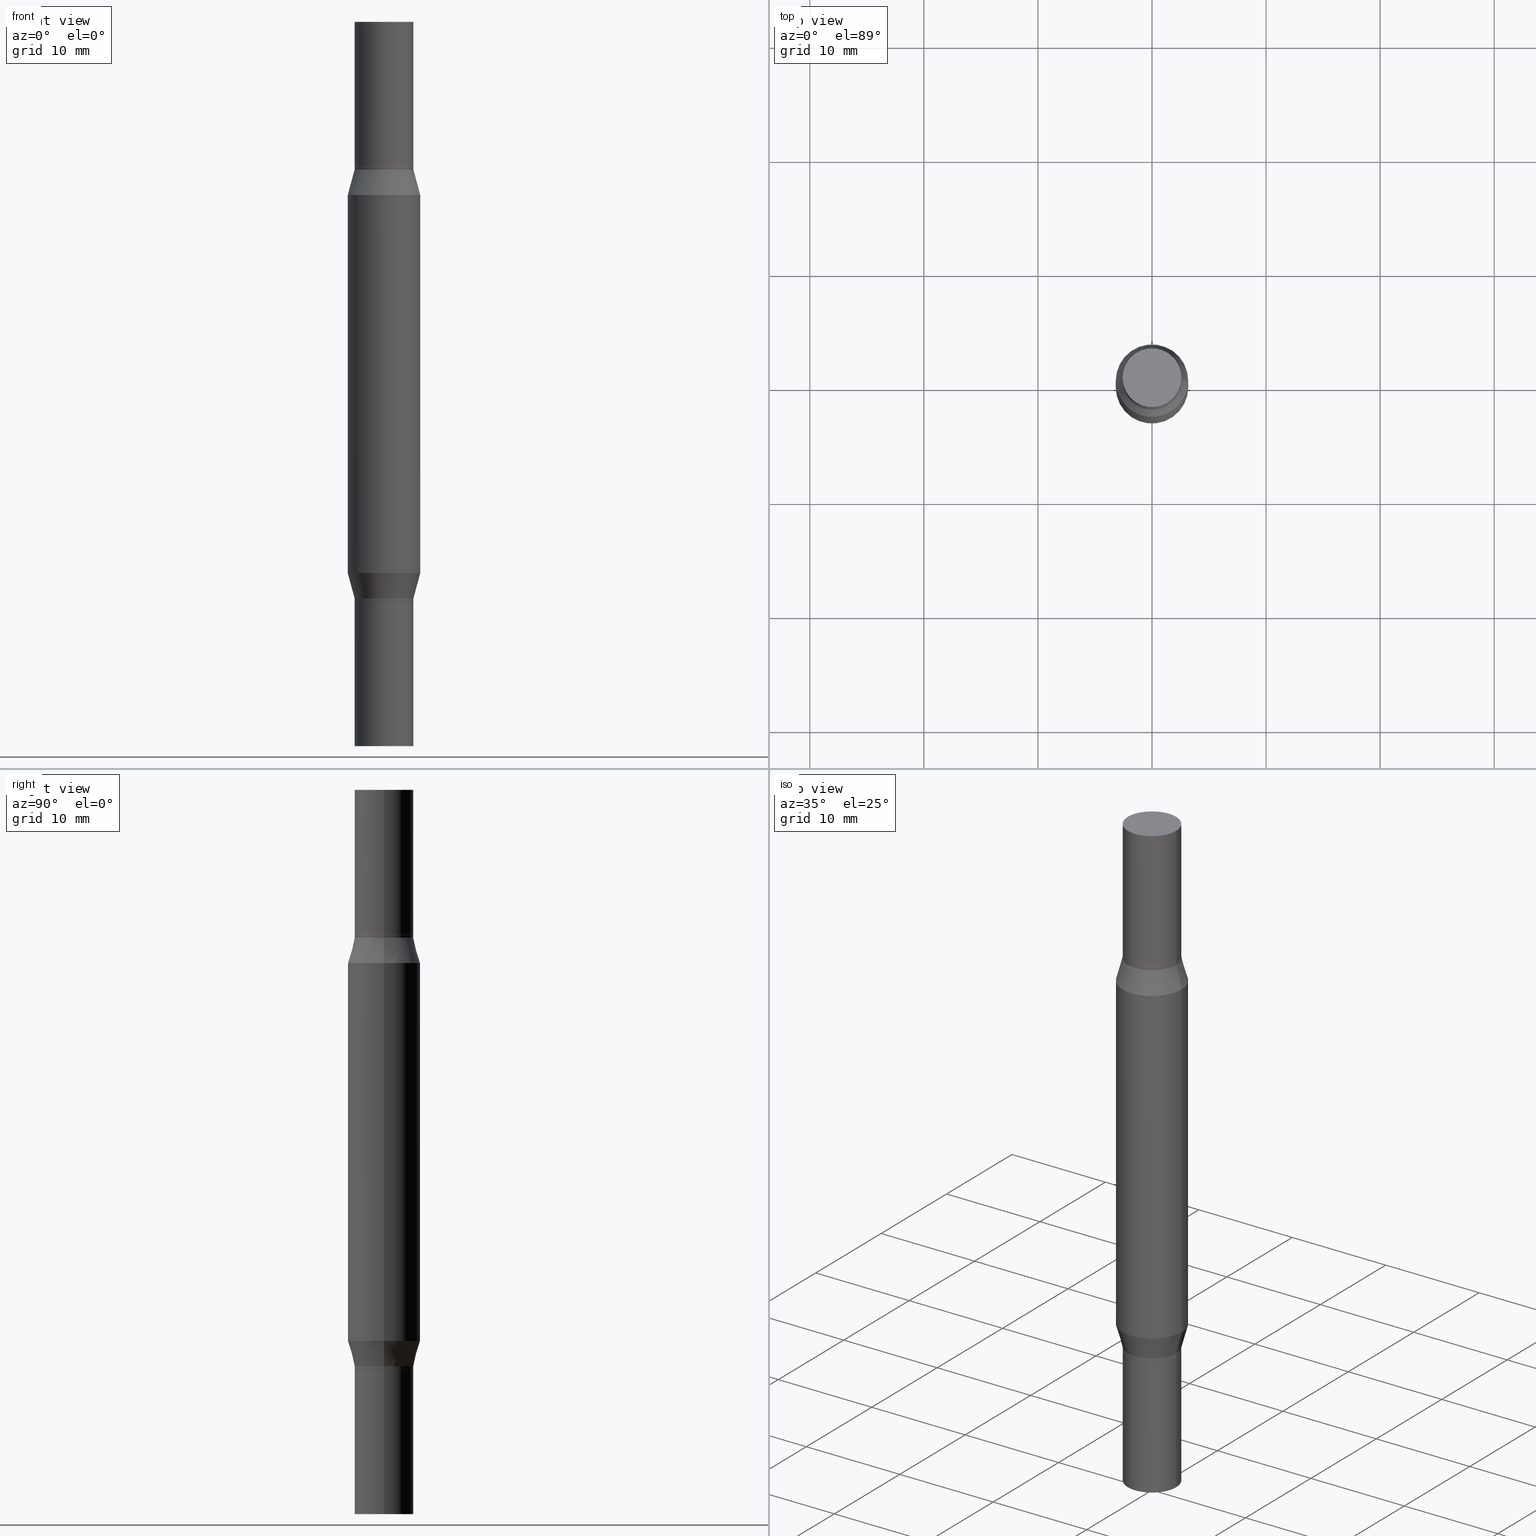
[diagram: canonical four-view strip — front | top / right | iso, engineering-drawing reading convention]
A machine part, canonical four-view strip (front | top / right | iso — engineering-drawing reading convention). The complete STEP part file that produces these views, byte-faithful:
ISO-10303-21;
HEADER;
FILE_DESCRIPTION (( 'STEP AP203' ),
    '1' );
FILE_NAME ('31563.STEP',
    '2024-03-04T16:03:35',
    ( '' ),
    ( '' ),
    'SwSTEP 2.0',
    'SolidWorks 2023',
    '' );
FILE_SCHEMA (( 'CONFIG_CONTROL_DESIGN' ));
ENDSEC;

DATA;
#1 = DIRECTION ( 'NONE',  ( -0.7071067811865595631, 2.382025595312359119E-15, -0.7071067811865354713 ) ) ;
#2 = CARTESIAN_POINT ( 'NONE',  ( 0.1250000000000000000, -9.601978376966118441E-15, -2.499999999999999556 ) ) ;
#3 = CARTESIAN_POINT ( 'NONE',  ( 0.000000000000000000, -8.729108042255335103E-15, -2.499999999999999556 ) ) ;
#4 = EDGE_LOOP ( 'NONE', ( #103, #882, #246, #475 ) ) ;
#5 = ORIENTED_EDGE ( 'NONE', *, *, #903, .F. ) ;
#6 = DIMENSIONAL_EXPONENTS ( 1.000000000000000000, 0.000000000000000000, 0.000000000000000000, 0.000000000000000000, 0.000000000000000000, 0.000000000000000000, 0.000000000000000000 ) ;
#7 = EDGE_LOOP ( 'NONE', ( #699, #916, #94, #30 ) ) ;
#8 = DIRECTION ( 'NONE',  ( 1.000000000000000000, -6.982962677686262766E-15, 0.000000000000000000 ) ) ;
#9 = CIRCLE ( 'NONE', #667, 0.1250000000000000000 ) ;
#10 = VECTOR ( 'NONE', #215, 39.37007874015748143 ) ;
#11 = AXIS2_PLACEMENT_3D ( 'NONE', #558, #567, #50 ) ;
#12 = DIRECTION ( 'NONE',  ( 1.000000000000000000, -6.982962677686265922E-15, 0.000000000000000000 ) ) ;
#13 = ORIENTED_EDGE ( 'NONE', *, *, #304, .F. ) ;
#14 =( CONVERSION_BASED_UNIT ( 'INCH', #381 ) LENGTH_UNIT ( ) NAMED_UNIT ( #6 ) );
#15 = FACE_OUTER_BOUND ( 'NONE', #912, .T. ) ;
#16 = ORIENTED_EDGE ( 'NONE', *, *, #758, .F. ) ;
#17 = EDGE_LOOP ( 'NONE', ( #563, #360 ) ) ;
#18 = CARTESIAN_POINT ( 'NONE',  ( 4.890937612370273194E-29, -1.745497852333086357E-15, -0.4999999999999996114 ) ) ;
#19 = CARTESIAN_POINT ( 'NONE',  ( 4.889714877967180392E-29, -1.747243754880568118E-15, -0.5004999999999995008 ) ) ;
#20 = LINE ( 'NONE', #542, #616 ) ;
#21 = PRODUCT_RELATED_PRODUCT_CATEGORY ( 'detail', '', ( #559 ) ) ;
#22 = EDGE_LOOP ( 'NONE', ( #674, #790 ) ) ;
#23 = DIRECTION ( 'NONE',  ( 1.000000000000000000, -6.982962677686259611E-15, 0.000000000000000000 ) ) ;
#24 = CIRCLE ( 'NONE', #594, 0.1015500000000000708 ) ;
#25 = CIRCLE ( 'NONE', #684, 0.1015499999999999875 ) ;
#26 = CYLINDRICAL_SURFACE ( 'NONE', #668, 0.1250000000000000000 ) ;
#27 = AXIS2_PLACEMENT_3D ( 'NONE', #229, #835, #8 ) ;
#28 = CARTESIAN_POINT ( 'NONE',  ( 7.091198599190897900E-16, 0.1015499999999983360, -0.5000000000000001110 ) ) ;
#29 = EDGE_CURVE ( 'NONE', #226, #460, #753, .T. ) ;
#30 = ORIENTED_EDGE ( 'NONE', *, *, #516, .T. ) ;
#31 = APPROVAL_STATUS ( 'not_yet_approved' ) ;
#32 = DIRECTION ( 'NONE',  ( 1.000000000000000000, -6.982962677686264344E-15, 0.000000000000000000 ) ) ;
#33 = DIRECTION ( 'NONE',  ( 2.445468806185136597E-29, 3.491805094961124077E-15, 1.000000000000000000 ) ) ;
#34 = ORIENTED_EDGE ( 'NONE', *, *, #531, .F. ) ;
#35 = CYLINDRICAL_SURFACE ( 'NONE', #885, 0.1015500000000000708 ) ;
#36 = CARTESIAN_POINT ( 'NONE',  ( 6.155164165207819189E-29, 5.982381516878351542E-17, 5.463695987328526437E-16 ) ) ;
#37 = CARTESIAN_POINT ( 'NONE',  ( -0.1015499999999999875, -6.259660788852487716E-15, -1.999500000000000055 ) ) ;
#38 = VERTEX_POINT ( 'NONE', #918 ) ;
#39 = EDGE_CURVE ( 'NONE', #320, #927, #534, .T. ) ;
#40 = DIRECTION ( 'NONE',  ( 2.445468806185136597E-29, 3.491805094961124077E-15, 1.000000000000000000 ) ) ;
#41 = CARTESIAN_POINT ( 'NONE',  ( -0.1250000000000000000, -7.871545792533893657E-15, -2.499999999999999556 ) ) ;
#42 = ORIENTED_EDGE ( 'NONE', *, *, #91, .T. ) ;
#43 = CC_DESIGN_PERSON_AND_ORGANIZATION_ASSIGNMENT ( #289, #472, ( #559 ) ) ;
#44 = VECTOR ( 'NONE', #904, 39.37007874015748143 ) ;
#45 = CARTESIAN_POINT ( 'NONE',  ( 4.866482924308422209E-29, -6.948047864297860305E-15, -1.989999999999999991 ) ) ;
#46 = AXIS2_PLACEMENT_3D ( 'NONE', #172, #931, #766 ) ;
#47 = FACE_OUTER_BOUND ( 'NONE', #168, .T. ) ;
#48 = CONICAL_SURFACE ( 'NONE', #305, 0.1015499999999997377, 0.2617993877991507401 ) ;
#49 = DIRECTION ( 'NONE',  ( 2.445468806185136597E-29, 3.491805094961124077E-15, 1.000000000000000000 ) ) ;
#50 = DIRECTION ( 'NONE',  ( 1.000000000000000000, -6.982962677686269866E-15, 0.000000000000000000 ) ) ;
#51 = CARTESIAN_POINT ( 'NONE',  ( 6.113672015462842613E-29, 4.046951474745467748E-19, 5.463695987328526437E-16 ) ) ;
#52 = EDGE_LOOP ( 'NONE', ( #160, #150, #457, #327 ) ) ;
#53 = CARTESIAN_POINT ( 'NONE',  ( -0.1015500000000000708, -8.032424470581635484E-15, -2.499999999999999556 ) ) ;
#54 = ADVANCED_FACE ( 'NONE', ( #341 ), #263, .F. ) ;
#55 = DIRECTION ( 'NONE',  ( -2.445468806185136597E-29, 3.491481338843145583E-15, 1.000000000000000000 ) ) ;
#56 = ORIENTED_EDGE ( 'NONE', *, *, #814, .T. ) ;
#57 = DIRECTION ( 'NONE',  ( 1.000000000000000000, -6.982962677686269866E-15, 0.000000000000000000 ) ) ;
#58 = ADVANCED_FACE ( 'NONE', ( #555 ), #970, .T. ) ;
#59 = DIRECTION ( 'NONE',  ( -2.445468806185136597E-29, -3.491805094961124077E-15, -1.000000000000000000 ) ) ;
#60 = DIRECTION ( 'NONE',  ( 1.000000000000000000, -6.982962677686265922E-15, 0.000000000000000000 ) ) ;
#61 = ORIENTED_EDGE ( 'NONE', *, *, #974, .T. ) ;
#62 = DIRECTION ( 'NONE',  ( 1.000000000000000000, -6.982962677686264344E-15, 0.000000000000000000 ) ) ;
#63 = VECTOR ( 'NONE', #64, 39.37007874015748854 ) ;
#64 = DIRECTION ( 'NONE',  ( 0.2588190451025219607, -5.180148453816008779E-15, -0.9659258262890678681 ) ) ;
#65 = CIRCLE ( 'NONE', #212, 0.1015499999999997377 ) ;
#66 = DIRECTION ( 'NONE',  ( 1.000000000000000000, -6.982962677686266711E-15, 0.000000000000000000 ) ) ;
#67 = ORIENTED_EDGE ( 'NONE', *, *, #307, .T. ) ;
#68 = DIRECTION ( 'NONE',  ( 1.000000000000000000, -6.982962677686268288E-15, 0.000000000000000000 ) ) ;
#69 = DIRECTION ( 'NONE',  ( 1.000000000000000000, -6.982962677686266711E-15, 0.000000000000000000 ) ) ;
#70 = EDGE_CURVE ( 'NONE', #548, #342, #75, .T. ) ;
#71 = ADVANCED_FACE ( 'NONE', ( #270 ), #571, .T. ) ;
#72 = PERSON_AND_ORGANIZATION ( #617, #913 ) ;
#73 = LINE ( 'NONE', #585, #44 ) ;
#74 = LINE ( 'NONE', #364, #400 ) ;
#75 = CIRCLE ( 'NONE', #733, 0.1015499999999997377 ) ;
#76 = AXIS2_PLACEMENT_3D ( 'NONE', #724, #896, #334 ) ;
#77 = CONICAL_SURFACE ( 'NONE', #553, 0.1015499999999997377, 0.2617993877991507401 ) ;
#78 = CIRCLE ( 'NONE', #437, 0.1015500000000000708 ) ;
#79 = CYLINDRICAL_SURFACE ( 'NONE', #478, 0.1250000000000000000 ) ;
#80 = ORIENTED_EDGE ( 'NONE', *, *, #865, .F. ) ;
#81 = DIRECTION ( 'NONE',  ( 1.000000000000000000, -6.982962677686263555E-15, 0.000000000000000000 ) ) ;
#82 = EDGE_LOOP ( 'NONE', ( #308, #842 ) ) ;
#83 = DIRECTION ( 'NONE',  ( -2.445468806185136877E-29, 3.491481338843145188E-15, 1.000000000000000000 ) ) ;
#84 = ORIENTED_EDGE ( 'NONE', *, *, #39, .T. ) ;
#85 = LINE ( 'NONE', #601, #960 ) ;
#86 = EDGE_LOOP ( 'NONE', ( #603, #404, #240, #866 ) ) ;
#87 = AXIS2_PLACEMENT_3D ( 'NONE', #269, #55, #727 ) ;
#88 =( LENGTH_UNIT ( ) NAMED_UNIT ( * ) SI_UNIT ( $, .METRE. ) );
#89 = FACE_OUTER_BOUND ( 'NONE', #742, .T. ) ;
#90 = CIRCLE ( 'NONE', #685, 0.1250000000000000000 ) ;
#91 = EDGE_CURVE ( 'NONE', #486, #622, #716, .T. ) ;
#92 = DIRECTION ( 'NONE',  ( 1.000000000000000000, -6.982962677686269866E-15, 0.000000000000000000 ) ) ;
#93 = CARTESIAN_POINT ( 'NONE',  ( 0.1015499999999997377, -2.489535763201737721E-15, -0.5099999999999994538 ) ) ;
#94 = ORIENTED_EDGE ( 'NONE', *, *, #344, .T. ) ;
#95 = EDGE_CURVE ( 'NONE', #777, #134, #683, .T. ) ;
#96 = CARTESIAN_POINT ( 'NONE',  ( 4.890937612370273194E-29, -6.982962677686291165E-15, -2.000000000000000000 ) ) ;
#97 = FACE_OUTER_BOUND ( 'NONE', #725, .T. ) ;
#98 = ADVANCED_FACE ( 'NONE', ( #359 ), #681, .T. ) ;
#99 = EDGE_LOOP ( 'NONE', ( #5, #728 ) ) ;
#100 = CYLINDRICAL_SURFACE ( 'NONE', #698, 0.1015500000000000708 ) ;
#101 = CARTESIAN_POINT ( 'NONE',  ( 3.056836007731420185E-29, -4.364351673553931682E-15, -1.249999999999999778 ) ) ;
#102 = PRODUCT_DEFINITION_SHAPE ( 'NONE', 'NONE',  #287 ) ;
#103 = ORIENTED_EDGE ( 'NONE', *, *, #328, .F. ) ;
#104 = DATE_AND_TIME ( #467, #182 ) ;
#105 = DIRECTION ( 'NONE',  ( 0.000000000000000000, 1.000000000000000000, -4.370956789862821150E-15 ) ) ;
#106 = VECTOR ( 'NONE', #483, 39.37007874015748143 ) ;
#107 = ORIENTED_EDGE ( 'NONE', *, *, #280, .F. ) ;
#108 = DIRECTION ( 'NONE',  ( -2.445468806185136597E-29, 3.491481338843145583E-15, 1.000000000000000000 ) ) ;
#109 = DIRECTION ( 'NONE',  ( -2.445468806185136877E-29, -3.491805094961123683E-15, -1.000000000000000000 ) ) ;
#110 = ORIENTED_EDGE ( 'NONE', *, *, #392, .T. ) ;
#111 =( NAMED_UNIT ( * ) SI_UNIT ( $, .STERADIAN. ) SOLID_ANGLE_UNIT ( ) );
#112 = CARTESIAN_POINT ( 'NONE',  ( 4.890937612370273194E-29, -1.745497852333086357E-15, -0.4999999999999996114 ) ) ;
#113 = VERTEX_POINT ( 'NONE', #161 ) ;
#114 = DIRECTION ( 'NONE',  ( -2.445468806185136877E-29, -3.491805094961123683E-15, -1.000000000000000000 ) ) ;
#115 = DIRECTION ( 'NONE',  ( 1.000000000000000000, -6.982962677686268288E-15, 0.000000000000000000 ) ) ;
#116 = FACE_OUTER_BOUND ( 'NONE', #695, .T. ) ;
#117 = VERTEX_POINT ( 'NONE', #390 ) ;
#118 = LINE ( 'NONE', #954, #512 ) ;
#119 = CARTESIAN_POINT ( 'NONE',  ( 4.890937612370273194E-29, -6.982962677686291165E-15, -2.000000000000000000 ) ) ;
#120 = FACE_OUTER_BOUND ( 'NONE', #511, .T. ) ;
#121 = ORIENTED_EDGE ( 'NONE', *, *, #758, .T. ) ;
#122 = CIRCLE ( 'NONE', #746, 0.1015499999999999875 ) ;
#123 = VECTOR ( 'NONE', #880, 39.37007874015748143 ) ;
#124 = ADVANCED_FACE ( 'NONE', ( #15 ), #170, .F. ) ;
#125 = DIRECTION ( 'NONE',  ( -2.445468806185136597E-29, -3.491805094961124077E-15, -1.000000000000000000 ) ) ;
#126 = VECTOR ( 'NONE', #275, 39.37007874015748854 ) ;
#127 = CARTESIAN_POINT ( 'NONE',  ( 6.113672015462842613E-29, -8.728703347107864943E-15, -2.500000000000000000 ) ) ;
#128 = EDGE_CURVE ( 'NONE', #710, #572, #365, .T. ) ;
#129 = ORIENTED_EDGE ( 'NONE', *, *, #974, .F. ) ;
#130 = EDGE_CURVE ( 'NONE', #767, #396, #851, .T. ) ;
#131 = DIRECTION ( 'NONE',  ( -2.445468806185136597E-29, -3.491805094961124077E-15, -1.000000000000000000 ) ) ;
#132 = DIRECTION ( 'NONE',  ( 0.7071067811865595631, -7.406779323393320831E-15, -0.7071067811865354713 ) ) ;
#133 = DIRECTION ( 'NONE',  ( 1.000000000000000000, -6.982962677686263555E-15, 0.000000000000000000 ) ) ;
#134 = VERTEX_POINT ( 'NONE', #462 ) ;
#135 = CARTESIAN_POINT ( 'NONE',  ( 0.1015499999999999875, -2.456363614799606928E-15, -0.5004999999999995008 ) ) ;
#136 = DIRECTION ( 'NONE',  ( 1.000000000000000000, -6.982962677686265922E-15, 0.000000000000000000 ) ) ;
#137 = DIRECTION ( 'NONE',  ( 1.000000000000000000, -6.982962677686264344E-15, 0.000000000000000000 ) ) ;
#138 = DIRECTION ( 'NONE',  ( -2.445468806185136877E-29, -3.491805094961123683E-15, -1.000000000000000000 ) ) ;
#139 = FACE_OUTER_BOUND ( 'NONE', #771, .T. ) ;
#140 = CARTESIAN_POINT ( 'NONE',  ( 0.000000000000000000, -8.729108042255335103E-15, -2.499999999999999556 ) ) ;
#141 = EDGE_LOOP ( 'NONE', ( #615, #121, #80, #920 ) ) ;
#142 = ADVANCED_FACE ( 'NONE', ( #769 ), #189, .T. ) ;
#143 = CARTESIAN_POINT ( 'NONE',  ( 4.866482924308422209E-29, -1.780415903282698911E-15, -0.5099999999999994538 ) ) ;
#144 = VECTOR ( 'NONE', #205, 39.37007874015748143 ) ;
#145 = AXIS2_PLACEMENT_3D ( 'NONE', #626, #937, #23 ) ;
#146 = FACE_OUTER_BOUND ( 'NONE', #310, .T. ) ;
#147 = AXIS2_PLACEMENT_3D ( 'NONE', #797, #892, #490 ) ;
#148 = DIRECTION ( 'NONE',  ( 1.000000000000000000, -6.982962677686265133E-15, 4.876176775795935232E-29 ) ) ;
#149 = EDGE_CURVE ( 'NONE', #423, #572, #794, .T. ) ;
#150 = ORIENTED_EDGE ( 'NONE', *, *, #516, .F. ) ;
#151 = CARTESIAN_POINT ( 'NONE',  ( 6.155164165207819189E-29, 5.982381516878351542E-17, 5.463695987328526437E-16 ) ) ;
#152 = AXIS2_PLACEMENT_3D ( 'NONE', #507, #735, #66 ) ;
#153 = AXIS2_PLACEMENT_3D ( 'NONE', #930, #965, #277 ) ;
#154 = DIRECTION ( 'NONE',  ( 2.445468806185136597E-29, 3.491805094961124077E-15, 1.000000000000000000 ) ) ;
#155 = ORIENTED_EDGE ( 'NONE', *, *, #285, .F. ) ;
#156 = EDGE_CURVE ( 'NONE', #572, #710, #9, .T. ) ;
#157 = CC_DESIGN_PERSON_AND_ORGANIZATION_ASSIGNMENT ( #944, #429, ( #165 ) ) ;
#158 = ORIENTED_EDGE ( 'NONE', *, *, #860, .T. ) ;
#159 = PLANE ( 'NONE',  #570 ) ;
#160 = ORIENTED_EDGE ( 'NONE', *, *, #262, .F. ) ;
#161 = CARTESIAN_POINT ( 'NONE',  ( 0.1015500000000000708, -7.087151647715663820E-16, 5.463695987328526437E-16 ) ) ;
#162 = VERTEX_POINT ( 'NONE', #498 ) ;
#163 = ADVANCED_FACE ( 'NONE', ( #120 ), #696, .T. ) ;
#164 = AXIS2_PLACEMENT_3D ( 'NONE', #506, #817, #431 ) ;
#165 = PRODUCT_DEFINITION_FORMATION_WITH_SPECIFIED_SOURCE ( 'ANY', '', #559, .NOT_KNOWN. ) ;
#166 = EDGE_CURVE ( 'NONE', #533, #38, #550, .T. ) ;
#167 = VERTEX_POINT ( 'NONE', #337 ) ;
#168 = EDGE_LOOP ( 'NONE', ( #401, #228, #110, #804 ) ) ;
#169 = DIRECTION ( 'NONE',  ( -2.445468806185136877E-29, -3.491805094961123683E-15, -1.000000000000000000 ) ) ;
#170 = PLANE ( 'NONE',  #290 ) ;
#171 = DIRECTION ( 'NONE',  ( 2.445468806185136597E-29, 3.491805094961124077E-15, 1.000000000000000000 ) ) ;
#172 = CARTESIAN_POINT ( 'NONE',  ( 0.000000000000000000, 0.000000000000000000, 0.000000000000000000 ) ) ;
#173 = VERTEX_POINT ( 'NONE', #37 ) ;
#174 = ORIENTED_EDGE ( 'NONE', *, *, #582, .T. ) ;
#175 = EDGE_LOOP ( 'NONE', ( #351, #379, #371, #704 ) ) ;
#176 = CARTESIAN_POINT ( 'NONE',  ( 0.000000000000000000, -8.729108042255335103E-15, -2.499999999999999556 ) ) ;
#177 = CLOSED_SHELL ( 'NONE', ( #58, #464, #862, #409 ) ) ;
#178 = AXIS2_PLACEMENT_3D ( 'NONE', #633, #348, #136 ) ;
#179 = ORIENTED_EDGE ( 'NONE', *, *, #531, .T. ) ;
#180 = AXIS2_PLACEMENT_3D ( 'NONE', #45, #873, #206 ) ;
#181 = CARTESIAN_POINT ( 'NONE',  ( 0.1015500000000000708, -9.438227902174375885E-15, -2.499999999999999556 ) ) ;
#182 = LOCAL_TIME ( 11, 3, 35.00000000000000000, #857 ) ;
#183 = ADVANCED_FACE ( 'NONE', ( #644 ), #421, .F. ) ;
#184 = LINE ( 'NONE', #707, #106 ) ;
#185 = CARTESIAN_POINT ( 'NONE',  ( 0.000000000000000000, 0.000000000000000000, 0.000000000000000000 ) ) ;
#186 = VERTEX_POINT ( 'NONE', #426 ) ;
#187 = DIRECTION ( 'NONE',  ( 1.000000000000000000, -6.982962677686263555E-15, 0.000000000000000000 ) ) ;
#188 = PERSON_AND_ORGANIZATION_ROLE ( 'design_supplier' ) ;
#189 = CYLINDRICAL_SURFACE ( 'NONE', #510, 0.1015499999999998765 ) ;
#190 = EDGE_LOOP ( 'NONE', ( #784, #489, #639, #871 ) ) ;
#191 = DIRECTION ( 'NONE',  ( 2.445468806185136597E-29, 3.491805094961124077E-15, 1.000000000000000000 ) ) ;
#192 = CARTESIAN_POINT ( 'NONE',  ( 4.889714877967180392E-29, -6.981216937016869662E-15, -1.999500000000000055 ) ) ;
#193 = EDGE_CURVE ( 'NONE', #581, #897, #614, .T. ) ;
#194 = ORIENTED_EDGE ( 'NONE', *, *, #309, .T. ) ;
#195 = CIRCLE ( 'NONE', #272, 0.1250000000000000000 ) ;
#196 = FACE_OUTER_BOUND ( 'NONE', #809, .T. ) ;
#197 = FACE_OUTER_BOUND ( 'NONE', #7, .T. ) ;
#198 = DIRECTION ( 'NONE',  ( 0.000000000000000000, 1.000000000000000000, -4.370956789862821150E-15 ) ) ;
#199 = DIRECTION ( 'NONE',  ( 1.000000000000000000, -6.982962677686265922E-15, 4.876176775795935793E-29 ) ) ;
#200 = ORIENTED_EDGE ( 'NONE', *, *, #865, .T. ) ;
#201 = CARTESIAN_POINT ( 'NONE',  ( 0.000000000000000000, -8.729108042255335103E-15, -2.499999999999999556 ) ) ;
#202 = CARTESIAN_POINT ( 'NONE',  ( 0.000000000000000000, -8.729108042255335103E-15, -2.499999999999999556 ) ) ;
#203 = DATE_AND_TIME ( #730, #292 ) ;
#204 = DIRECTION ( 'NONE',  ( 1.000000000000000000, -6.982962677686266711E-15, 0.000000000000000000 ) ) ;
#205 = DIRECTION ( 'NONE',  ( -2.445468806185136877E-29, 3.491481338843145188E-15, 1.000000000000000000 ) ) ;
#206 = DIRECTION ( 'NONE',  ( 1.000000000000000000, -6.982962677686263555E-15, 0.000000000000000000 ) ) ;
#207 = VERTEX_POINT ( 'NONE', #352 ) ;
#208 = CYLINDRICAL_SURFACE ( 'NONE', #476, 0.1015499999999998765 ) ;
#209 = ORIENTED_EDGE ( 'NONE', *, *, #802, .T. ) ;
#210 = AXIS2_PLACEMENT_3D ( 'NONE', #192, #492, #60 ) ;
#211 = AXIS2_PLACEMENT_3D ( 'NONE', #544, #692, #761 ) ;
#212 = AXIS2_PLACEMENT_3D ( 'NONE', #525, #298, #81 ) ;
#213 = CARTESIAN_POINT ( 'NONE',  ( 0.000000000000000000, 0.000000000000000000, -1.249999999999999778 ) ) ;
#214 = EDGE_CURVE ( 'NONE', #162, #622, #788, .T. ) ;
#215 = DIRECTION ( 'NONE',  ( -2.445468806185136877E-29, -3.491805094961123683E-15, -1.000000000000000000 ) ) ;
#216 = LINE ( 'NONE', #517, #63 ) ;
#217 = EDGE_CURVE ( 'NONE', #167, #423, #195, .T. ) ;
#218 = FACE_OUTER_BOUND ( 'NONE', #271, .T. ) ;
#219 = APPROVAL ( #441, 'UNSPECIFIED' ) ;
#220 = CIRCLE ( 'NONE', #210, 0.1015499999999999875 ) ;
#221 = ORIENTED_EDGE ( 'NONE', *, *, #70, .T. ) ;
#222 = AXIS2_PLACEMENT_3D ( 'NONE', #213, #841, #465 ) ;
#223 = AXIS2_PLACEMENT_3D ( 'NONE', #619, #630, #265 ) ;
#224 = CC_DESIGN_APPROVAL ( #456, ( #738 ) ) ;
#225 = CARTESIAN_POINT ( 'NONE',  ( 0.1010500000000000703, -2.451126230913283934E-15, -0.4999999999999996114 ) ) ;
#226 = VERTEX_POINT ( 'NONE', #815 ) ;
#227 = CALENDAR_DATE ( 2024, 4, 3 ) ;
#228 = ORIENTED_EDGE ( 'NONE', *, *, #958, .T. ) ;
#229 = CARTESIAN_POINT ( 'NONE',  ( 0.000000000000000000, -8.729108042255335103E-15, -2.499999999999999556 ) ) ;
#230 = ORIENTED_EDGE ( 'NONE', *, *, #858, .T. ) ;
#231 = CALENDAR_DATE ( 2024, 4, 3 ) ;
#232 = DIRECTION ( 'NONE',  ( -2.445468806185136877E-29, -3.491805094961123683E-15, -1.000000000000000000 ) ) ;
#233 = EDGE_LOOP ( 'NONE', ( #236, #34 ) ) ;
#234 = EDGE_CURVE ( 'NONE', #767, #167, #552, .T. ) ;
#235 = DIRECTION ( 'NONE',  ( -0.2588190451025219607, -1.597197180879709001E-15, -0.9659258262890678681 ) ) ;
#236 = ORIENTED_EDGE ( 'NONE', *, *, #484, .F. ) ;
#237 = VECTOR ( 'NONE', #562, 39.37007874015748854 ) ;
#238 = CONICAL_SURFACE ( 'NONE', #435, 0.1010500000000000703, 0.7853981633974653764 ) ;
#239 = CIRCLE ( 'NONE', #638, 0.1015499999999997377 ) ;
#240 = ORIENTED_EDGE ( 'NONE', *, *, #496, .T. ) ;
#241 = DIRECTION ( 'NONE',  ( -0.7071067811865595631, 2.382025595312359119E-15, -0.7071067811865354713 ) ) ;
#242 = DIRECTION ( 'NONE',  ( -0.000000000000000000, -3.491643216902134830E-15, -1.000000000000000000 ) ) ;
#243 = ORIENTED_EDGE ( 'NONE', *, *, #939, .F. ) ;
#244 = COORDINATED_UNIVERSAL_TIME_OFFSET ( 5, 0, .BEHIND. ) ;
#245 = DIRECTION ( 'NONE',  ( 1.000000000000000000, -6.982962677686268288E-15, 0.000000000000000000 ) ) ;
#246 = ORIENTED_EDGE ( 'NONE', *, *, #304, .T. ) ;
#247 = DIRECTION ( 'NONE',  ( 1.000000000000000000, -6.982962677686264344E-15, 0.000000000000000000 ) ) ;
#248 = VERTEX_POINT ( 'NONE', #938 ) ;
#249 = CARTESIAN_POINT ( 'NONE',  ( -0.1015499999999997377, -1.067146257407934882E-15, -0.5099999999999994538 ) ) ;
#250 = DATE_AND_TIME ( #691, #596 ) ;
#251 = LINE ( 'NONE', #322, #366 ) ;
#252 = LINE ( 'NONE', #41, #653 ) ;
#253 = AXIS2_PLACEMENT_3D ( 'NONE', #140, #948, #422 ) ;
#254 = ORIENTED_EDGE ( 'NONE', *, *, #149, .F. ) ;
#255 = CIRCLE ( 'NONE', #211, 0.1250000000000000000 ) ;
#256 = DIRECTION ( 'NONE',  ( 1.000000000000000000, -6.982962677686266711E-15, 0.000000000000000000 ) ) ;
#257 = PLANE ( 'NONE',  #634 ) ;
#258 = ORIENTED_EDGE ( 'NONE', *, *, #802, .F. ) ;
#259 = EDGE_CURVE ( 'NONE', #759, #248, #414, .T. ) ;
#260 = CARTESIAN_POINT ( 'NONE',  ( 4.890937612370273194E-29, -1.745497852333086357E-15, -0.4999999999999996114 ) ) ;
#261 = CARTESIAN_POINT ( 'NONE',  ( -0.1015499999999997377, -1.083732331609001856E-15, -0.5099999999999994538 ) ) ;
#262 = EDGE_CURVE ( 'NONE', #167, #710, #252, .T. ) ;
#263 = PLANE ( 'NONE',  #491 ) ;
#264 = ORIENTED_EDGE ( 'NONE', *, *, #156, .F. ) ;
#265 = DIRECTION ( 'NONE',  ( 1.000000000000000000, -6.982962677686269866E-15, 0.000000000000000000 ) ) ;
#266 = ADVANCED_BREP_SHAPE_REPRESENTATION ( '31563', ( #288, #286, #281, #946, #602, #383 ), #700 ) ;
#267 = ADVANCED_FACE ( 'NONE', ( #345 ), #257, .F. ) ;
#268 = CARTESIAN_POINT ( 'NONE',  ( -0.1015499999999997377, -6.226491716133479937E-15, -1.989999999999999991 ) ) ;
#269 = CARTESIAN_POINT ( 'NONE',  ( 4.890937612370273194E-29, -6.982962677686291165E-15, -2.000000000000000000 ) ) ;
#270 = FACE_OUTER_BOUND ( 'NONE', #519, .T. ) ;
#271 = EDGE_LOOP ( 'NONE', ( #480, #891, #221, #331 ) ) ;
#272 = AXIS2_PLACEMENT_3D ( 'NONE', #627, #962, #878 ) ;
#273 = VECTOR ( 'NONE', #241, 39.37007874015748143 ) ;
#274 = VECTOR ( 'NONE', #114, 39.37007874015748143 ) ;
#275 = DIRECTION ( 'NONE',  ( -0.2588190451025219607, 5.211531920934553408E-15, 0.9659258262890678681 ) ) ;
#276 = DIRECTION ( 'NONE',  ( 1.000000000000000000, -6.982962677686259611E-15, 0.000000000000000000 ) ) ;
#277 = DIRECTION ( 'NONE',  ( 1.000000000000000000, -6.982962677686266711E-15, 0.000000000000000000 ) ) ;
#278 = DIRECTION ( 'NONE',  ( 1.000000000000000000, -6.982962677686264344E-15, 0.000000000000000000 ) ) ;
#279 = ORIENTED_EDGE ( 'NONE', *, *, #846, .F. ) ;
#280 = EDGE_CURVE ( 'NONE', #162, #173, #220, .T. ) ;
#281 = MANIFOLD_SOLID_BREP ( 'Mirror1[3]', #732 ) ;
#282 = LINE ( 'NONE', #887, #123 ) ;
#283 = FACE_OUTER_BOUND ( 'NONE', #4, .T. ) ;
#284 = ORIENTED_EDGE ( 'NONE', *, *, #714, .F. ) ;
#285 = EDGE_CURVE ( 'NONE', #533, #759, #184, .T. ) ;
#286 = MANIFOLD_SOLID_BREP ( 'Mirror1[1]', #713 ) ;
#287 = PRODUCT_DEFINITION ( 'UNKNOWN', '', #165, #669 ) ;
#288 = MANIFOLD_SOLID_BREP ( 'Body-Move/Copy2[1]', #354 ) ;
#289 = PERSON_AND_ORGANIZATION ( #617, #913 ) ;
#290 = AXIS2_PLACEMENT_3D ( 'NONE', #772, #312, #606 ) ;
#291 = CIRCLE ( 'NONE', #799, 0.1015500000000000708 ) ;
#292 = LOCAL_TIME ( 11, 3, 35.00000000000000000, #806 ) ;
#293 = CYLINDRICAL_SURFACE ( 'NONE', #554, 0.1015500000000000708 ) ;
#294 = ADVANCED_FACE ( 'NONE', ( #116 ), #406, .F. ) ;
#295 = ADVANCED_FACE ( 'NONE', ( #488 ), #778, .T. ) ;
#296 = DIRECTION ( 'NONE',  ( 1.000000000000000000, -6.982962677686268288E-15, 0.000000000000000000 ) ) ;
#297 = VERTEX_POINT ( 'NONE', #336 ) ;
#298 = DIRECTION ( 'NONE',  ( -2.445468806185136597E-29, 3.491481338843145583E-15, 1.000000000000000000 ) ) ;
#299 = UNCERTAINTY_MEASURE_WITH_UNIT (LENGTH_MEASURE( 1.000000000000000082E-05 ), #14, 'distance_accuracy_value', 'NONE');
#300 = EDGE_LOOP ( 'NONE', ( #953, #455 ) ) ;
#301 = DIRECTION ( 'NONE',  ( -2.445468806185136597E-29, 3.491481338843145583E-15, 1.000000000000000000 ) ) ;
#302 = DATE_AND_TIME ( #231, #672 ) ;
#303 = ORIENTED_EDGE ( 'NONE', *, *, #565, .T. ) ;
#304 = EDGE_CURVE ( 'NONE', #935, #162, #410, .T. ) ;
#305 = AXIS2_PLACEMENT_3D ( 'NONE', #874, #869, #245 ) ;
#306 = LOCAL_TIME ( 11, 3, 35.00000000000000000, #833 ) ;
#307 = EDGE_CURVE ( 'NONE', #460, #207, #762, .T. ) ;
#308 = ORIENTED_EDGE ( 'NONE', *, *, #643, .F. ) ;
#309 = EDGE_CURVE ( 'NONE', #207, #460, #122, .T. ) ;
#310 = EDGE_LOOP ( 'NONE', ( #922, #385, #959, #313 ) ) ;
#311 = DIRECTION ( 'NONE',  ( 2.445468806185136597E-29, 3.491805094961124077E-15, 1.000000000000000000 ) ) ;
#312 = DIRECTION ( 'NONE',  ( -2.438088387897960049E-29, 3.491481338843145188E-15, 1.000000000000000000 ) ) ;
#313 = ORIENTED_EDGE ( 'NONE', *, *, #609, .T. ) ;
#314 = APPROVAL_DATE_TIME ( #250, #219 ) ;
#315 = APPLICATION_PROTOCOL_DEFINITION ( 'international standard', 'config_control_design', 1994, #679 ) ;
#316 = CARTESIAN_POINT ( 'NONE',  ( 4.889714877967180392E-29, -6.981216937016869662E-15, -1.999500000000000055 ) ) ;
#317 = SHAPE_DEFINITION_REPRESENTATION ( #102, #266 ) ;
#318 = CARTESIAN_POINT ( 'NONE',  ( 0.000000000000000000, -8.729108042255335103E-15, -2.499999999999999556 ) ) ;
#319 = EDGE_CURVE ( 'NONE', #819, #226, #900, .T. ) ;
#320 = VERTEX_POINT ( 'NONE', #574 ) ;
#321 = CIRCLE ( 'NONE', #445, 0.1015500000000000708 ) ;
#322 = CARTESIAN_POINT ( 'NONE',  ( -0.1250000000000000000, -7.871545792533893657E-15, -2.499999999999999556 ) ) ;
#323 = ADVANCED_FACE ( 'NONE', ( #813 ), #35, .T. ) ;
#324 = CIRCLE ( 'NONE', #670, 0.1250000000000000000 ) ;
#325 = CARTESIAN_POINT ( 'NONE',  ( 0.000000000000000000, -8.729108042255335103E-15, -2.499999999999999556 ) ) ;
#326 = DIRECTION ( 'NONE',  ( 2.445468806185136597E-29, 3.491805094961124077E-15, 1.000000000000000000 ) ) ;
#327 = ORIENTED_EDGE ( 'NONE', *, *, #128, .F. ) ;
#328 = EDGE_CURVE ( 'NONE', #708, #173, #73, .T. ) ;
#329 = PLANE ( 'NONE',  #340 ) ;
#330 = ADVANCED_FACE ( 'NONE', ( #367 ), #434, .T. ) ;
#331 = ORIENTED_EDGE ( 'NONE', *, *, #463, .F. ) ;
#332 = DIRECTION ( 'NONE',  ( 1.000000000000000000, -6.982962677686265922E-15, 0.000000000000000000 ) ) ;
#333 = CARTESIAN_POINT ( 'NONE',  ( 0.000000000000000000, 0.000000000000000000, 0.000000000000000000 ) ) ;
#334 = DIRECTION ( 'NONE',  ( 1.000000000000000000, -6.982962677686265922E-15, 2.260776888683160832E-33 ) ) ;
#335 = ORIENTED_EDGE ( 'NONE', *, *, #262, .T. ) ;
#336 = CARTESIAN_POINT ( 'NONE',  ( 0.1015499999999999875, -2.456363614799606928E-15, -0.5004999999999995008 ) ) ;
#337 = CARTESIAN_POINT ( 'NONE',  ( -0.1250000000000000000, -1.228444533436318603E-15, -0.5975165914374901410 ) ) ;
#338 = AXIS2_PLACEMENT_3D ( 'NONE', #876, #485, #789 ) ;
#339 = ADVANCED_FACE ( 'NONE', ( #146 ), #208, .T. ) ;
#340 = AXIS2_PLACEMENT_3D ( 'NONE', #36, #389, #605 ) ;
#341 = FACE_OUTER_BOUND ( 'NONE', #82, .T. ) ;
#342 = VERTEX_POINT ( 'NONE', #906 ) ;
#343 = CYLINDRICAL_SURFACE ( 'NONE', #521, 0.1015499999999998765 ) ;
#344 = EDGE_CURVE ( 'NONE', #396, #423, #216, .T. ) ;
#345 = FACE_OUTER_BOUND ( 'NONE', #99, .T. ) ;
#346 = CARTESIAN_POINT ( 'NONE',  ( 6.155164165207819189E-29, -8.669284227086555593E-15, -2.500000000000000000 ) ) ;
#347 = ORIENTED_EDGE ( 'NONE', *, *, #344, .F. ) ;
#348 = DIRECTION ( 'NONE',  ( 2.445468806185136597E-29, 3.491805094961124077E-15, 1.000000000000000000 ) ) ;
#349 = CARTESIAN_POINT ( 'NONE',  ( 7.091198599190897900E-16, 0.1015499999999983360, -0.5000000000000001110 ) ) ;
#350 = CARTESIAN_POINT ( 'NONE',  ( 4.866482924308422209E-29, -1.780415903282698911E-15, -0.5099999999999994538 ) ) ;
#351 = ORIENTED_EDGE ( 'NONE', *, *, #95, .F. ) ;
#352 = CARTESIAN_POINT ( 'NONE',  ( -0.1015499999999999875, -1.050560183206867711E-15, -0.5004999999999995008 ) ) ;
#353 = DIRECTION ( 'NONE',  ( 2.445468806185136597E-29, 3.491805094961124077E-15, 1.000000000000000000 ) ) ;
#354 = CLOSED_SHELL ( 'NONE', ( #394, #54, #978, #443 ) ) ;
#355 = ORIENTED_EDGE ( 'NONE', *, *, #915, .F. ) ;
#356 = CIRCLE ( 'NONE', #635, 0.1010500000000000703 ) ;
#357 = CARTESIAN_POINT ( 'NONE',  ( 4.890937612370273194E-29, -6.982962677686291165E-15, -2.000000000000000000 ) ) ;
#358 = CARTESIAN_POINT ( 'NONE',  ( 6.113672015462842613E-29, 4.046951474745467748E-19, 5.463695987328526437E-16 ) ) ;
#359 = FACE_OUTER_BOUND ( 'NONE', #536, .T. ) ;
#360 = ORIENTED_EDGE ( 'NONE', *, *, #128, .T. ) ;
#361 = CARTESIAN_POINT ( 'NONE',  ( 0.1015500000000000708, -7.087151647715663820E-16, 5.463695987328526437E-16 ) ) ;
#362 = FACE_OUTER_BOUND ( 'NONE', #17, .T. ) ;
#363 = APPROVAL_STATUS ( 'not_yet_approved' ) ;
#364 = CARTESIAN_POINT ( 'NONE',  ( -0.1010500000000000703, -1.052244529658272643E-15, -0.4999999999999996114 ) ) ;
#365 = CIRCLE ( 'NONE', #520, 0.1250000000000000000 ) ;
#366 = VECTOR ( 'NONE', #169, 39.37007874015748143 ) ;
#367 = FACE_OUTER_BOUND ( 'NONE', #655, .T. ) ;
#368 = DIRECTION ( 'NONE',  ( 1.000000000000000000, -6.982962677686265922E-15, 0.000000000000000000 ) ) ;
#369 = EDGE_CURVE ( 'NONE', #248, #759, #321, .T. ) ;
#370 = ORIENTED_EDGE ( 'NONE', *, *, #482, .F. ) ;
#371 = ORIENTED_EDGE ( 'NONE', *, *, #846, .T. ) ;
#372 = CYLINDRICAL_SURFACE ( 'NONE', #889, 0.1015499999999998765 ) ;
#373 = EDGE_CURVE ( 'NONE', #113, #117, #24, .T. ) ;
#374 = ORIENTED_EDGE ( 'NONE', *, *, #217, .F. ) ;
#375 = ADVANCED_FACE ( 'NONE', ( #362 ), #972, .F. ) ;
#376 = AXIS2_PLACEMENT_3D ( 'NONE', #127, #875, #276 ) ;
#377 = AXIS2_PLACEMENT_3D ( 'NONE', #444, #811, #579 ) ;
#378 = CARTESIAN_POINT ( 'NONE',  ( -0.1010500000000000703, -1.051402356432570078E-15, -0.4999999999999996114 ) ) ;
#379 = ORIENTED_EDGE ( 'NONE', *, *, #663, .T. ) ;
#380 = AXIS2_PLACEMENT_3D ( 'NONE', #112, #551, #382 ) ;
#381 = LENGTH_MEASURE_WITH_UNIT ( LENGTH_MEASURE( 0.02539999999999999897 ), #88 );
#382 = DIRECTION ( 'NONE',  ( 1.000000000000000000, -6.982962677686264344E-15, 0.000000000000000000 ) ) ;
#383 = AXIS2_PLACEMENT_3D ( 'NONE', #333, #566, #821 ) ;
#384 = APPROVAL_PERSON_ORGANIZATION ( #72, #456, #853 ) ;
#385 = ORIENTED_EDGE ( 'NONE', *, *, #307, .F. ) ;
#386 = DIRECTION ( 'NONE',  ( -1.000000000000000000, 6.982962677686265922E-15, -2.260776888683160832E-33 ) ) ;
#387 = ORIENTED_EDGE ( 'NONE', *, *, #91, .F. ) ;
#388 = COORDINATED_UNIVERSAL_TIME_OFFSET ( 5, 0, .BEHIND. ) ;
#389 = DIRECTION ( 'NONE',  ( -2.438088387897959208E-29, -3.491805094961123683E-15, -1.000000000000000000 ) ) ;
#390 = CARTESIAN_POINT ( 'NONE',  ( -0.1015500000000000708, -1.758630069191064586E-16, 5.463695987328557991E-16 ) ) ;
#391 = CYLINDRICAL_SURFACE ( 'NONE', #654, 0.1015499999999998765 ) ;
#392 = EDGE_CURVE ( 'NONE', #827, #297, #399, .T. ) ;
#393 = ORIENTED_EDGE ( 'NONE', *, *, #319, .F. ) ;
#394 = ADVANCED_FACE ( 'NONE', ( #532 ), #694, .T. ) ;
#395 = APPROVAL ( #31, 'UNSPECIFIED' ) ;
#396 = VERTEX_POINT ( 'NONE', #93 ) ;
#397 = DATE_TIME_ROLE ( 'creation_date' ) ;
#398 = AXIS2_PLACEMENT_3D ( 'NONE', #499, #427, #576 ) ;
#399 = CIRCLE ( 'NONE', #459, 0.1015499999999999875 ) ;
#400 = VECTOR ( 'NONE', #1, 39.37007874015748143 ) ;
#401 = ORIENTED_EDGE ( 'NONE', *, *, #565, .F. ) ;
#402 = ORIENTED_EDGE ( 'NONE', *, *, #795, .T. ) ;
#403 = FACE_OUTER_BOUND ( 'NONE', #649, .T. ) ;
#404 = ORIENTED_EDGE ( 'NONE', *, *, #791, .F. ) ;
#405 = LINE ( 'NONE', #53, #537 ) ;
#406 = PLANE ( 'NONE',  #836 ) ;
#407 = EDGE_LOOP ( 'NONE', ( #155, #546, #508, #528 ) ) ;
#408 = FACE_OUTER_BOUND ( 'NONE', #52, .T. ) ;
#409 = ADVANCED_FACE ( 'NONE', ( #697 ), #159, .F. ) ;
#410 = LINE ( 'NONE', #722, #977 ) ;
#411 = PERSON_AND_ORGANIZATION ( #617, #913 ) ;
#412 = CARTESIAN_POINT ( 'NONE',  ( 0.1015500000000000708, -2.454617712252127730E-15, -0.4999999999999996114 ) ) ;
#413 = DIRECTION ( 'NONE',  ( -2.445468806185136877E-29, -3.491805094961123683E-15, -1.000000000000000000 ) ) ;
#414 = CIRCLE ( 'NONE', #87, 0.1015500000000000708 ) ;
#415 = VECTOR ( 'NONE', #632, 39.37007874015748143 ) ;
#416 = ORIENTED_EDGE ( 'NONE', *, *, #714, .T. ) ;
#417 = CC_DESIGN_APPROVAL ( #395, ( #165 ) ) ;
#418 = CARTESIAN_POINT ( 'NONE',  ( -0.1015500000000000708, -8.032424470581635484E-15, -2.499999999999999556 ) ) ;
#419 = MECHANICAL_CONTEXT ( 'NONE', #679, 'mechanical' ) ;
#420 = LINE ( 'NONE', #646, #765 ) ;
#421 = PLANE ( 'NONE',  #76 ) ;
#422 = DIRECTION ( 'NONE',  ( 1.000000000000000000, -6.982962677686269866E-15, 0.000000000000000000 ) ) ;
#423 = VERTEX_POINT ( 'NONE', #743 ) ;
#424 = EDGE_CURVE ( 'NONE', #827, #767, #446, .T. ) ;
#425 = EDGE_CURVE ( 'NONE', #134, #561, #749, .T. ) ;
#426 = CARTESIAN_POINT ( 'NONE',  ( -0.1015500000000000708, -1.758630069191064586E-16, -0.4999999999999996114 ) ) ;
#427 = DIRECTION ( 'NONE',  ( -2.445468806185136597E-29, 3.491481338843145583E-15, 1.000000000000000000 ) ) ;
#428 = ORIENTED_EDGE ( 'NONE', *, *, #814, .F. ) ;
#429 = PERSON_AND_ORGANIZATION_ROLE ( 'creator' ) ;
#430 = DIRECTION ( 'NONE',  ( -2.445468806185136597E-29, -3.491805094961124077E-15, -1.000000000000000000 ) ) ;
#431 = DIRECTION ( 'NONE',  ( 1.000000000000000000, -6.982962677686269866E-15, 0.000000000000000000 ) ) ;
#432 = VECTOR ( 'NONE', #453, 39.37007874015748143 ) ;
#433 = ORIENTED_EDGE ( 'NONE', *, *, #130, .F. ) ;
#434 = CONICAL_SURFACE ( 'NONE', #911, 0.1015499999999997377, 0.2617993877991507401 ) ;
#435 = AXIS2_PLACEMENT_3D ( 'NONE', #18, #471, #247 ) ;
#436 = FACE_OUTER_BOUND ( 'NONE', #300, .T. ) ;
#437 = AXIS2_PLACEMENT_3D ( 'NONE', #504, #191, #256 ) ;
#438 = CARTESIAN_POINT ( 'NONE',  ( 4.866482924308422209E-29, -1.780415903282698911E-15, -0.5099999999999994538 ) ) ;
#439 = DIRECTION ( 'NONE',  ( -2.445468806185136597E-29, 3.491481338843145583E-15, 1.000000000000000000 ) ) ;
#440 = ORIENTED_EDGE ( 'NONE', *, *, #496, .F. ) ;
#441 = APPROVAL_STATUS ( 'not_yet_approved' ) ;
#442 = ADVANCED_FACE ( 'NONE', ( #893 ), #79, .T. ) ;
#443 = ADVANCED_FACE ( 'NONE', ( #502 ), #832, .F. ) ;
#444 = CARTESIAN_POINT ( 'NONE',  ( 7.091198599190897900E-16, 0.1015499999999930902, -2.000000000000000444 ) ) ;
#445 = AXIS2_PLACEMENT_3D ( 'NONE', #357, #590, #829 ) ;
#446 = LINE ( 'NONE', #671, #925 ) ;
#447 = AXIS2_PLACEMENT_3D ( 'NONE', #968, #787, #115 ) ;
#448 = DIRECTION ( 'NONE',  ( -2.445468806185136597E-29, -3.491805094961124077E-15, -1.000000000000000000 ) ) ;
#449 = ORIENTED_EDGE ( 'NONE', *, *, #193, .T. ) ;
#450 = CARTESIAN_POINT ( 'NONE',  ( 4.652463829924389037E-29, -6.642485318454700807E-15, -1.902483408562509304 ) ) ;
#451 = EDGE_LOOP ( 'NONE', ( #803, #618, #677, #200 ) ) ;
#452 = PERSON_AND_ORGANIZATION ( #617, #913 ) ;
#453 = DIRECTION ( 'NONE',  ( 0.7071067811865595631, -7.406779323393320831E-15, -0.7071067811865354713 ) ) ;
#454 = DIRECTION ( 'NONE',  ( 2.438088387897959208E-29, 3.491805094961123683E-15, 1.000000000000000000 ) ) ;
#455 = ORIENTED_EDGE ( 'NONE', *, *, #703, .T. ) ;
#456 = APPROVAL ( #363, 'UNSPECIFIED' ) ;
#457 = ORIENTED_EDGE ( 'NONE', *, *, #149, .T. ) ;
#458 = AXIS2_PLACEMENT_3D ( 'NONE', #625, #49, #950 ) ;
#459 = AXIS2_PLACEMENT_3D ( 'NONE', #19, #326, #12 ) ;
#460 = VERTEX_POINT ( 'NONE', #135 ) ;
#461 = CC_DESIGN_APPROVAL ( #219, ( #287 ) ) ;
#462 = CARTESIAN_POINT ( 'NONE',  ( 0.1250000000000000000, -2.958877117868543782E-15, -0.5975165914374901410 ) ) ;
#463 = EDGE_CURVE ( 'NONE', #460, #342, #729, .T. ) ;
#464 = ADVANCED_FACE ( 'NONE', ( #436 ), #740, .F. ) ;
#465 = DIRECTION ( 'NONE',  ( 0.000000000000000000, 1.000000000000000000, -3.491643216902134435E-15 ) ) ;
#466 = ORIENTED_EDGE ( 'NONE', *, *, #95, .T. ) ;
#467 = CALENDAR_DATE ( 2024, 4, 3 ) ;
#468 = CARTESIAN_POINT ( 'NONE',  ( -0.1010500000000000703, -1.052244529658272643E-15, -0.4999999999999996114 ) ) ;
#469 = EDGE_CURVE ( 'NONE', #622, #561, #85, .T. ) ;
#470 = ORIENTED_EDGE ( 'NONE', *, *, #675, .F. ) ;
#471 = DIRECTION ( 'NONE',  ( -2.445468806185136597E-29, -3.491805094961124077E-15, -1.000000000000000000 ) ) ;
#472 = PERSON_AND_ORGANIZATION_ROLE ( 'design_owner' ) ;
#473 = EDGE_LOOP ( 'NONE', ( #433, #932, #661, #347 ) ) ;
#474 = CLOSED_SHELL ( 'NONE', ( #509, #501, #98, #973, #330, #964, #689, #183, #599, #339, #607, #442, #163, #71, #539, #124 ) ) ;
#475 = ORIENTED_EDGE ( 'NONE', *, *, #660, .F. ) ;
#476 = AXIS2_PLACEMENT_3D ( 'NONE', #3, #587, #523 ) ;
#477 = DIRECTION ( 'NONE',  ( 1.000000000000000000, -6.982962677686269866E-15, 0.000000000000000000 ) ) ;
#478 = AXIS2_PLACEMENT_3D ( 'NONE', #202, #658, #665 ) ;
#479 = CIRCLE ( 'NONE', #223, 0.1015500000000000708 ) ;
#480 = ORIENTED_EDGE ( 'NONE', *, *, #309, .F. ) ;
#481 = DIRECTION ( 'NONE',  ( -2.445468806185136597E-29, -3.491805094961124077E-15, -1.000000000000000000 ) ) ;
#482 = EDGE_CURVE ( 'NONE', #297, #396, #845, .T. ) ;
#483 = DIRECTION ( 'NONE',  ( -2.445468806185136877E-29, 3.491481338843145188E-15, 1.000000000000000000 ) ) ;
#484 = EDGE_CURVE ( 'NONE', #838, #556, #595, .T. ) ;
#485 = DIRECTION ( 'NONE',  ( -2.445468806185136597E-29, 3.491481338843145583E-15, 1.000000000000000000 ) ) ;
#486 = VERTEX_POINT ( 'NONE', #770 ) ;
#487 = ADVANCED_FACE ( 'NONE', ( #97 ), #391, .T. ) ;
#488 = FACE_OUTER_BOUND ( 'NONE', #756, .T. ) ;
#489 = ORIENTED_EDGE ( 'NONE', *, *, #285, .T. ) ;
#490 = DIRECTION ( 'NONE',  ( 1.000000000000000000, -6.982962677686262766E-15, 0.000000000000000000 ) ) ;
#491 = AXIS2_PLACEMENT_3D ( 'NONE', #346, #952, #199 ) ;
#492 = DIRECTION ( 'NONE',  ( -2.445468806185136597E-29, 3.491481338843145583E-15, 1.000000000000000000 ) ) ;
#493 = AXIS2_PLACEMENT_3D ( 'NONE', #575, #719, #801 ) ;
#494 = AXIS2_PLACEMENT_3D ( 'NONE', #764, #608, #92 ) ;
#495 = ORIENTED_EDGE ( 'NONE', *, *, #424, .T. ) ;
#496 = EDGE_CURVE ( 'NONE', #897, #774, #825, .T. ) ;
#497 = CYLINDRICAL_SURFACE ( 'NONE', #522, 0.1015500000000000708 ) ;
#498 = CARTESIAN_POINT ( 'NONE',  ( 0.1015499999999999875, -7.690336796935910444E-15, -1.999500000000000055 ) ) ;
#499 = CARTESIAN_POINT ( 'NONE',  ( 4.866482924308422209E-29, -6.948047864297860305E-15, -1.989999999999999991 ) ) ;
#500 = ORIENTED_EDGE ( 'NONE', *, *, #29, .T. ) ;
#501 = ADVANCED_FACE ( 'NONE', ( #139 ), #343, .T. ) ;
#502 = FACE_OUTER_BOUND ( 'NONE', #22, .T. ) ;
#503 = DIRECTION ( 'NONE',  ( 0.7071067811865595631, -2.468850131082382884E-15, 0.7071067811865354713 ) ) ;
#504 = CARTESIAN_POINT ( 'NONE',  ( 6.113672015462842613E-29, 4.046951474745467748E-19, 5.463695987328526437E-16 ) ) ;
#505 = DIRECTION ( 'NONE',  ( -1.000000000000000000, 6.982962677686265922E-15, -2.260776888683160832E-33 ) ) ;
#506 = CARTESIAN_POINT ( 'NONE',  ( 4.890937612370273194E-29, -1.745497852333086357E-15, -0.4999999999999996114 ) ) ;
#507 = CARTESIAN_POINT ( 'NONE',  ( 4.652463829924389037E-29, -2.086006783157758077E-15, -0.5975165914374901410 ) ) ;
#508 = ORIENTED_EDGE ( 'NONE', *, *, #934, .T. ) ;
#509 = ADVANCED_FACE ( 'NONE', ( #712 ), #584, .T. ) ;
#510 = AXIS2_PLACEMENT_3D ( 'NONE', #709, #888, #133 ) ;
#511 = EDGE_LOOP ( 'NONE', ( #16, #42, #856, #279 ) ) ;
#512 = VECTOR ( 'NONE', #641, 39.37007874015748854 ) ;
#513 = ADVANCED_FACE ( 'NONE', ( #640 ), #26, .T. ) ;
#514 = CIRCLE ( 'NONE', #980, 0.1010500000000000703 ) ;
#515 = DATE_AND_TIME ( #227, #306 ) ;
#516 = EDGE_CURVE ( 'NONE', #423, #167, #826, .T. ) ;
#517 = CARTESIAN_POINT ( 'NONE',  ( 0.1015499999999997377, -2.489535763201737721E-15, -0.5099999999999994538 ) ) ;
#518 = CYLINDRICAL_SURFACE ( 'NONE', #27, 0.1250000000000000000 ) ;
#519 = EDGE_LOOP ( 'NONE', ( #284, #861, #600, #387 ) ) ;
#520 = AXIS2_PLACEMENT_3D ( 'NONE', #101, #242, #105 ) ;
#521 = AXIS2_PLACEMENT_3D ( 'NONE', #624, #439, #148 ) ;
#522 = AXIS2_PLACEMENT_3D ( 'NONE', #201, #131, #57 ) ;
#523 = DIRECTION ( 'NONE',  ( 1.000000000000000000, -6.982962677686263555E-15, 0.000000000000000000 ) ) ;
#524 = ORIENTED_EDGE ( 'NONE', *, *, #484, .T. ) ;
#525 = CARTESIAN_POINT ( 'NONE',  ( 4.866482924308422209E-29, -6.948047864297860305E-15, -1.989999999999999991 ) ) ;
#526 = EDGE_LOOP ( 'NONE', ( #899, #449 ) ) ;
#527 = CC_DESIGN_PERSON_AND_ORGANIZATION_ASSIGNMENT ( #411, #908, ( #738 ) ) ;
#528 = ORIENTED_EDGE ( 'NONE', *, *, #259, .F. ) ;
#529 = DIRECTION ( 'NONE',  ( 1.000000000000000000, -6.982962677686264344E-15, 0.000000000000000000 ) ) ;
#530 = VERTEX_POINT ( 'NONE', #620 ) ;
#531 = EDGE_CURVE ( 'NONE', #556, #838, #824, .T. ) ;
#532 = FACE_OUTER_BOUND ( 'NONE', #190, .T. ) ;
#533 = VERTEX_POINT ( 'NONE', #659 ) ;
#534 = CIRCLE ( 'NONE', #549, 0.1010500000000000703 ) ;
#535 = AXIS2_PLACEMENT_3D ( 'NONE', #718, #59, #137 ) ;
#536 = EDGE_LOOP ( 'NONE', ( #174, #754, #107, #13 ) ) ;
#537 = VECTOR ( 'NONE', #884, 39.37007874015748143 ) ;
#538 = PERSON_AND_ORGANIZATION_ROLE ( 'creator' ) ;
#539 = ADVANCED_FACE ( 'NONE', ( #283 ), #852, .T. ) ;
#540 = CARTESIAN_POINT ( 'NONE',  ( -0.1015500000000000708, -1.758630069191064586E-16, 5.463695987328557991E-16 ) ) ;
#541 = DIRECTION ( 'NONE',  ( -2.438088387897959208E-29, -3.491805094961123683E-15, -1.000000000000000000 ) ) ;
#542 = CARTESIAN_POINT ( 'NONE',  ( 0.1015500000000000708, -9.438227902174375885E-15, -2.499999999999999556 ) ) ;
#543 = EDGE_LOOP ( 'NONE', ( #577, #495, #940, #370 ) ) ;
#544 = CARTESIAN_POINT ( 'NONE',  ( 4.652463829924389037E-29, -2.086006783157758077E-15, -0.5975165914374901410 ) ) ;
#545 = EDGE_LOOP ( 'NONE', ( #61, #870 ) ) ;
#546 = ORIENTED_EDGE ( 'NONE', *, *, #166, .T. ) ;
#547 = DIRECTION ( 'NONE',  ( -2.445468806185136597E-29, -3.491805094961124077E-15, -1.000000000000000000 ) ) ;
#548 = VERTEX_POINT ( 'NONE', #249 ) ;
#549 = AXIS2_PLACEMENT_3D ( 'NONE', #693, #171, #278 ) ;
#550 = CIRCLE ( 'NONE', #376, 0.1015500000000000708 ) ;
#551 = DIRECTION ( 'NONE',  ( 2.445468806185136597E-29, 3.491805094961124077E-15, 1.000000000000000000 ) ) ;
#552 = LINE ( 'NONE', #261, #237 ) ;
#553 = AXIS2_PLACEMENT_3D ( 'NONE', #863, #706, #776 ) ;
#554 = AXIS2_PLACEMENT_3D ( 'NONE', #586, #843, #905 ) ;
#555 = FACE_OUTER_BOUND ( 'NONE', #877, .T. ) ;
#556 = VERTEX_POINT ( 'NONE', #834 ) ;
#557 = PERSON_AND_ORGANIZATION ( #617, #913 ) ;
#558 = CARTESIAN_POINT ( 'NONE',  ( 4.890937612370273194E-29, -1.745497852333086357E-15, -0.4999999999999996114 ) ) ;
#559 = PRODUCT ( '31563', '31563', '', ( #419 ) ) ;
#560 = DIRECTION ( 'NONE',  ( 1.000000000000000000, -6.982962677686265922E-15, 2.260776888683160832E-33 ) ) ;
#561 = VERTEX_POINT ( 'NONE', #752 ) ;
#562 = DIRECTION ( 'NONE',  ( -0.2588190451025219607, -1.597197180879709001E-15, -0.9659258262890678681 ) ) ;
#563 = ORIENTED_EDGE ( 'NONE', *, *, #156, .T. ) ;
#564 = DIRECTION ( 'NONE',  ( 2.445468806185136597E-29, 3.491805094961124077E-15, 1.000000000000000000 ) ) ;
#565 = EDGE_CURVE ( 'NONE', #927, #320, #779, .T. ) ;
#566 = DIRECTION ( 'NONE',  ( 0.000000000000000000, 0.000000000000000000, 1.000000000000000000 ) ) ;
#567 = DIRECTION ( 'NONE',  ( 2.445468806185136597E-29, 3.491805094961124077E-15, 1.000000000000000000 ) ) ;
#568 = CARTESIAN_POINT ( 'NONE',  ( 0.1015499999999998765, -7.091198599190394015E-16, 4.951757515820766066E-30 ) ) ;
#569 = AXIS2_PLACEMENT_3D ( 'NONE', #185, #818, #890 ) ;
#570 = AXIS2_PLACEMENT_3D ( 'NONE', #28, #454, #386 ) ;
#571 = CYLINDRICAL_SURFACE ( 'NONE', #569, 0.1015499999999998765 ) ;
#572 = VERTEX_POINT ( 'NONE', #768 ) ;
#573 = VECTOR ( 'NONE', #673, 39.37007874015748143 ) ;
#574 = CARTESIAN_POINT ( 'NONE',  ( 0.1010500000000000703, -2.451126230913283934E-15, -0.4999999999999996114 ) ) ;
#575 = CARTESIAN_POINT ( 'NONE',  ( 4.866482924308422209E-29, -6.948047864297860305E-15, -1.989999999999999991 ) ) ;
#576 = DIRECTION ( 'NONE',  ( 1.000000000000000000, -6.982962677686263555E-15, 0.000000000000000000 ) ) ;
#577 = ORIENTED_EDGE ( 'NONE', *, *, #392, .F. ) ;
#578 = DIRECTION ( 'NONE',  ( -2.445468806185136597E-29, 3.491481338843145583E-15, 1.000000000000000000 ) ) ;
#579 = DIRECTION ( 'NONE',  ( -1.000000000000000000, 6.982962677686265922E-15, -4.876176775795935793E-29 ) ) ;
#580 = APPROVAL_ROLE ( '' ) ;
#581 = VERTEX_POINT ( 'NONE', #540 ) ;
#582 = EDGE_CURVE ( 'NONE', #935, #708, #356, .T. ) ;
#583 = VECTOR ( 'NONE', #413, 39.37007874015748143 ) ;
#584 = CONICAL_SURFACE ( 'NONE', #180, 0.1015499999999997377, 0.2617993877991507401 ) ;
#585 = CARTESIAN_POINT ( 'NONE',  ( -0.1010500000000000703, -6.264959243200708540E-15, -2.000000000000000000 ) ) ;
#586 = CARTESIAN_POINT ( 'NONE',  ( 0.000000000000000000, 0.000000000000000000, 0.000000000000000000 ) ) ;
#587 = DIRECTION ( 'NONE',  ( -2.445468806185136597E-29, -3.491805094961124077E-15, -1.000000000000000000 ) ) ;
#588 = CARTESIAN_POINT ( 'NONE',  ( 0.000000000000000000, -8.729108042255335103E-15, -2.499999999999999556 ) ) ;
#589 = EDGE_CURVE ( 'NONE', #134, #777, #255, .T. ) ;
#590 = DIRECTION ( 'NONE',  ( -2.445468806185136597E-29, 3.491481338843145583E-15, 1.000000000000000000 ) ) ;
#591 = ORIENTED_EDGE ( 'NONE', *, *, #424, .F. ) ;
#592 = LINE ( 'NONE', #849, #926 ) ;
#593 = ORIENTED_EDGE ( 'NONE', *, *, #214, .F. ) ;
#594 = AXIS2_PLACEMENT_3D ( 'NONE', #822, #741, #69 ) ;
#595 = CIRCLE ( 'NONE', #494, 0.1015500000000000708 ) ;
#596 = LOCAL_TIME ( 11, 3, 35.00000000000000000, #388 ) ;
#597 = ORIENTED_EDGE ( 'NONE', *, *, #858, .F. ) ;
#598 = DIRECTION ( 'NONE',  ( 1.000000000000000000, -6.982962677686263555E-15, 0.000000000000000000 ) ) ;
#599 = ADVANCED_FACE ( 'NONE', ( #403 ), #238, .T. ) ;
#600 = ORIENTED_EDGE ( 'NONE', *, *, #214, .T. ) ;
#601 = CARTESIAN_POINT ( 'NONE',  ( 0.1015499999999997377, -7.657167724216897932E-15, -1.989999999999999991 ) ) ;
#602 = MANIFOLD_SOLID_BREP ( 'Combine1', #474 ) ;
#603 = ORIENTED_EDGE ( 'NONE', *, *, #860, .F. ) ;
#604 = FACE_OUTER_BOUND ( 'NONE', #407, .T. ) ;
#605 = DIRECTION ( 'NONE',  ( 1.000000000000000000, -6.982962677686265922E-15, 2.260776888683160832E-33 ) ) ;
#606 = DIRECTION ( 'NONE',  ( 1.000000000000000000, -6.982962677686265922E-15, 4.876176775795935793E-29 ) ) ;
#607 = ADVANCED_FACE ( 'NONE', ( #89 ), #77, .T. ) ;
#608 = DIRECTION ( 'NONE',  ( 2.445468806185136597E-29, 3.491805094961124077E-15, 1.000000000000000000 ) ) ;
#609 = EDGE_CURVE ( 'NONE', #342, #548, #886, .T. ) ;
#610 = ORIENTED_EDGE ( 'NONE', *, *, #798, .T. ) ;
#611 = ADVANCED_FACE ( 'NONE', ( #850 ), #100, .T. ) ;
#612 = DIRECTION ( 'NONE',  ( -2.445468806185136597E-29, 3.491481338843145583E-15, 1.000000000000000000 ) ) ;
#613 = DIRECTION ( 'NONE',  ( -2.445468806185136597E-29, -3.491805094961124077E-15, -1.000000000000000000 ) ) ;
#614 = CIRCLE ( 'NONE', #941, 0.1015500000000000708 ) ;
#615 = ORIENTED_EDGE ( 'NONE', *, *, #915, .T. ) ;
#616 = VECTOR ( 'NONE', #109, 39.37007874015748143 ) ;
#617 = PERSON ( 'UNSPECIFIED', 'UNSPECIFIED', 'UNSPECIFIED', ('UNSPECIFIED'), ('UNSPECIFIED'), ('UNSPECIFIED') ) ;
#618 = ORIENTED_EDGE ( 'NONE', *, *, #589, .F. ) ;
#619 = CARTESIAN_POINT ( 'NONE',  ( 4.890937612370273194E-29, -1.745497852333086357E-15, -0.4999999999999996114 ) ) ;
#620 = CARTESIAN_POINT ( 'NONE',  ( -0.1250000000000000000, -3.506789423832489448E-15, -1.902483408562509304 ) ) ;
#621 = FACE_OUTER_BOUND ( 'NONE', #473, .T. ) ;
#622 = VERTEX_POINT ( 'NONE', #859 ) ;
#623 = ORIENTED_EDGE ( 'NONE', *, *, #675, .T. ) ;
#624 = CARTESIAN_POINT ( 'NONE',  ( 0.000000000000000000, 0.000000000000000000, 0.000000000000000000 ) ) ;
#625 = CARTESIAN_POINT ( 'NONE',  ( 4.890937612370273194E-29, -1.745497852333086357E-15, -0.4999999999999996114 ) ) ;
#626 = CARTESIAN_POINT ( 'NONE',  ( 6.113672015462842613E-29, -8.728703347107864943E-15, -2.500000000000000000 ) ) ;
#627 = CARTESIAN_POINT ( 'NONE',  ( 4.652463829924389037E-29, -2.086006783157758077E-15, -0.5975165914374901410 ) ) ;
#628 = ADVANCED_FACE ( 'NONE', ( #783 ), #329, .F. ) ;
#629 = EDGE_LOOP ( 'NONE', ( #393, #623, #194, #682 ) ) ;
#630 = DIRECTION ( 'NONE',  ( 2.445468806185136597E-29, 3.491805094961124077E-15, 1.000000000000000000 ) ) ;
#631 = CC_DESIGN_PERSON_AND_ORGANIZATION_ASSIGNMENT ( #557, #188, ( #165 ) ) ;
#632 = DIRECTION ( 'NONE',  ( -2.445468806185136877E-29, -3.491805094961123683E-15, -1.000000000000000000 ) ) ;
#633 = CARTESIAN_POINT ( 'NONE',  ( 4.889714877967180392E-29, -1.747243754880568118E-15, -0.5004999999999995008 ) ) ;
#634 = AXIS2_PLACEMENT_3D ( 'NONE', #349, #647, #505 ) ;
#635 = AXIS2_PLACEMENT_3D ( 'NONE', #96, #702, #32 ) ;
#636 = DIRECTION ( 'NONE',  ( 1.000000000000000000, -6.982962677686264344E-15, 0.000000000000000000 ) ) ;
#637 = CARTESIAN_POINT ( 'NONE',  ( 4.890937612370273194E-29, -1.745497852333086357E-15, -0.4999999999999996114 ) ) ;
#638 = AXIS2_PLACEMENT_3D ( 'NONE', #143, #739, #68 ) ;
#639 = ORIENTED_EDGE ( 'NONE', *, *, #369, .F. ) ;
#640 = FACE_OUTER_BOUND ( 'NONE', #949, .T. ) ;
#641 = DIRECTION ( 'NONE',  ( 0.2588190451025219607, -5.180148453816008779E-15, -0.9659258262890678681 ) ) ;
#642 = CARTESIAN_POINT ( 'NONE',  ( 0.000000000000000000, -8.729108042255335103E-15, -2.499999999999999556 ) ) ;
#643 = EDGE_CURVE ( 'NONE', #38, #533, #717, .T. ) ;
#644 = FACE_OUTER_BOUND ( 'NONE', #545, .T. ) ;
#645 = ORIENTED_EDGE ( 'NONE', *, *, #939, .T. ) ;
#646 = CARTESIAN_POINT ( 'NONE',  ( 0.1010500000000000703, -2.451126230913283934E-15, -0.4999999999999996114 ) ) ;
#647 = DIRECTION ( 'NONE',  ( 2.438088387897959208E-29, 3.491805094961123683E-15, 1.000000000000000000 ) ) ;
#648 = DIRECTION ( 'NONE',  ( 1.000000000000000000, -6.982962677686268288E-15, 0.000000000000000000 ) ) ;
#649 = EDGE_LOOP ( 'NONE', ( #470, #129, #500, #67 ) ) ;
#650 = DIRECTION ( 'NONE',  ( 1.000000000000000000, -6.982962677686270655E-15, 0.000000000000000000 ) ) ;
#651 = LINE ( 'NONE', #755, #781 ) ;
#652 = DIRECTION ( 'NONE',  ( 1.000000000000000000, -6.982962677686266711E-15, 0.000000000000000000 ) ) ;
#653 = VECTOR ( 'NONE', #138, 39.37007874015748143 ) ;
#654 = AXIS2_PLACEMENT_3D ( 'NONE', #318, #613, #187 ) ;
#655 = EDGE_LOOP ( 'NONE', ( #879, #209, #466, #839 ) ) ;
#656 = CONICAL_SURFACE ( 'NONE', #748, 0.1010500000000000703, 0.7853981633974653764 ) ;
#657 = CARTESIAN_POINT ( 'NONE',  ( 4.652463829924389037E-29, -6.642485318454700807E-15, -1.902483408562509304 ) ) ;
#658 = DIRECTION ( 'NONE',  ( -2.445468806185136597E-29, -3.491805094961124077E-15, -1.000000000000000000 ) ) ;
#659 = CARTESIAN_POINT ( 'NONE',  ( -0.1015500000000000708, -7.134276864232696503E-15, -2.500000000000000000 ) ) ;
#660 = EDGE_CURVE ( 'NONE', #173, #162, #25, .T. ) ;
#661 = ORIENTED_EDGE ( 'NONE', *, *, #217, .T. ) ;
#662 = DATE_TIME_ROLE ( 'classification_date' ) ;
#663 = EDGE_CURVE ( 'NONE', #777, #530, #251, .T. ) ;
#664 = CC_DESIGN_DATE_AND_TIME_ASSIGNMENT ( #515, #662, ( #738 ) ) ;
#665 = DIRECTION ( 'NONE',  ( 1.000000000000000000, -6.982962677686262766E-15, 0.000000000000000000 ) ) ;
#666 = CARTESIAN_POINT ( 'NONE',  ( 4.890937612370273194E-29, -1.745497852333086357E-15, -0.4999999999999996114 ) ) ;
#667 = AXIS2_PLACEMENT_3D ( 'NONE', #881, #808, #198 ) ;
#668 = AXIS2_PLACEMENT_3D ( 'NONE', #325, #936, #969 ) ;
#669 = DESIGN_CONTEXT ( 'detailed design', #711, 'design' ) ;
#670 = AXIS2_PLACEMENT_3D ( 'NONE', #657, #578, #650 ) ;
#671 = CARTESIAN_POINT ( 'NONE',  ( -0.1015499999999998765, -8.032424470581637062E-15, -2.499999999999999556 ) ) ;
#672 = LOCAL_TIME ( 11, 3, 35.00000000000000000, #244 ) ;
#673 = DIRECTION ( 'NONE',  ( -2.445468806185136877E-29, -3.491805094961123683E-15, -1.000000000000000000 ) ) ;
#674 = ORIENTED_EDGE ( 'NONE', *, *, #369, .T. ) ;
#675 = EDGE_CURVE ( 'NONE', #819, #207, #928, .T. ) ;
#676 = ORIENTED_EDGE ( 'NONE', *, *, #39, .F. ) ;
#677 = ORIENTED_EDGE ( 'NONE', *, *, #425, .T. ) ;
#678 = ORIENTED_EDGE ( 'NONE', *, *, #609, .F. ) ;
#679 = APPLICATION_CONTEXT ( 'configuration controlled 3d designs of mechanical parts and assemblies' ) ;
#680 = FACE_OUTER_BOUND ( 'NONE', #175, .T. ) ;
#681 = CONICAL_SURFACE ( 'NONE', #338, 0.1010500000000000703, 0.7853981633974653764 ) ;
#682 = ORIENTED_EDGE ( 'NONE', *, *, #29, .F. ) ;
#683 = CIRCLE ( 'NONE', #152, 0.1250000000000000000 ) ;
#684 = AXIS2_PLACEMENT_3D ( 'NONE', #316, #612, #923 ) ;
#685 = AXIS2_PLACEMENT_3D ( 'NONE', #450, #301, #898 ) ;
#686 = ORIENTED_EDGE ( 'NONE', *, *, #831, .T. ) ;
#687 = CARTESIAN_POINT ( 'NONE',  ( 4.866482924308422209E-29, -1.780415903282698911E-15, -0.5099999999999994538 ) ) ;
#688 = ORIENTED_EDGE ( 'NONE', *, *, #872, .T. ) ;
#689 = ADVANCED_FACE ( 'NONE', ( #800 ), #979, .T. ) ;
#690 = EDGE_LOOP ( 'NONE', ( #736, #158, #402, #440 ) ) ;
#691 = CALENDAR_DATE ( 2024, 4, 3 ) ;
#692 = DIRECTION ( 'NONE',  ( 2.445468806185136597E-29, 3.491805094961124077E-15, 1.000000000000000000 ) ) ;
#693 = CARTESIAN_POINT ( 'NONE',  ( 4.890937612370273194E-29, -1.745497852333086357E-15, -0.4999999999999996114 ) ) ;
#694 = CYLINDRICAL_SURFACE ( 'NONE', #46, 0.1015500000000000708 ) ;
#695 = EDGE_LOOP ( 'NONE', ( #84, #303 ) ) ;
#696 = CONICAL_SURFACE ( 'NONE', #493, 0.1015499999999997377, 0.2617993877991507401 ) ;
#697 = FACE_OUTER_BOUND ( 'NONE', #233, .T. ) ;
#698 = AXIS2_PLACEMENT_3D ( 'NONE', #176, #547, #477 ) ;
#699 = ORIENTED_EDGE ( 'NONE', *, *, #234, .F. ) ;
#700 =( GEOMETRIC_REPRESENTATION_CONTEXT ( 3 ) GLOBAL_UNCERTAINTY_ASSIGNED_CONTEXT ( ( #299 ) ) GLOBAL_UNIT_ASSIGNED_CONTEXT ( ( #14, #786, #111 ) ) REPRESENTATION_CONTEXT ( 'NONE', 'WORKASPACE' ) );
#701 = PERSON_AND_ORGANIZATION ( #617, #913 ) ;
#702 = DIRECTION ( 'NONE',  ( -2.445468806185136597E-29, 3.491481338843145583E-15, 1.000000000000000000 ) ) ;
#703 = EDGE_CURVE ( 'NONE', #117, #113, #291, .T. ) ;
#704 = ORIENTED_EDGE ( 'NONE', *, *, #425, .F. ) ;
#705 = DIRECTION ( 'NONE',  ( 1.000000000000000000, -6.982962677686264344E-15, 0.000000000000000000 ) ) ;
#706 = DIRECTION ( 'NONE',  ( -2.445468806185136597E-29, -3.491805094961124077E-15, -1.000000000000000000 ) ) ;
#707 = CARTESIAN_POINT ( 'NONE',  ( -0.1015500000000000708, 7.215561481643822416E-16, -4.995178584153860605E-30 ) ) ;
#708 = VERTEX_POINT ( 'NONE', #793 ) ;
#709 = CARTESIAN_POINT ( 'NONE',  ( 0.000000000000000000, -8.729108042255335103E-15, -2.499999999999999556 ) ) ;
#710 = VERTEX_POINT ( 'NONE', #726 ) ;
#711 = APPLICATION_CONTEXT ( 'configuration controlled 3d designs of mechanical parts and assemblies' ) ;
#712 = FACE_OUTER_BOUND ( 'NONE', #141, .T. ) ;
#713 = CLOSED_SHELL ( 'NONE', ( #513, #830, #142, #844, #375, #294, #295, #487, #723, #840 ) ) ;
#714 = EDGE_CURVE ( 'NONE', #173, #486, #282, .T. ) ;
#715 = CARTESIAN_POINT ( 'NONE',  ( 4.889714877967180392E-29, -1.747243754880568118E-15, -0.5004999999999995008 ) ) ;
#716 = CIRCLE ( 'NONE', #398, 0.1015499999999997377 ) ;
#717 = CIRCLE ( 'NONE', #145, 0.1015500000000000708 ) ;
#718 = CARTESIAN_POINT ( 'NONE',  ( 4.890937612370273194E-29, -1.745497852333086357E-15, -0.4999999999999996114 ) ) ;
#719 = DIRECTION ( 'NONE',  ( -2.445468806185136597E-29, 3.491481338843145583E-15, 1.000000000000000000 ) ) ;
#720 = APPROVAL_PERSON_ORGANIZATION ( #701, #395, #580 ) ;
#721 = ORIENTED_EDGE ( 'NONE', *, *, #280, .T. ) ;
#722 = CARTESIAN_POINT ( 'NONE',  ( 0.1010500000000000703, -7.688591056266488151E-15, -2.000000000000000000 ) ) ;
#723 = ADVANCED_FACE ( 'NONE', ( #197 ), #737, .T. ) ;
#724 = CARTESIAN_POINT ( 'NONE',  ( 4.890937612370273194E-29, -1.745497852333086357E-15, -0.4999999999999996114 ) ) ;
#725 = EDGE_LOOP ( 'NONE', ( #591, #243, #909, #688 ) ) ;
#726 = CARTESIAN_POINT ( 'NONE',  ( -0.1250000000000000000, -2.367616978634402645E-15, -1.249999999999999778 ) ) ;
#727 = DIRECTION ( 'NONE',  ( 1.000000000000000000, -6.982962677686269866E-15, 0.000000000000000000 ) ) ;
#728 = ORIENTED_EDGE ( 'NONE', *, *, #795, .F. ) ;
#729 = LINE ( 'NONE', #975, #734 ) ;
#730 = CALENDAR_DATE ( 2024, 4, 3 ) ;
#731 = DIRECTION ( 'NONE',  ( 1.000000000000000000, -6.982962677686269866E-15, 0.000000000000000000 ) ) ;
#732 = CLOSED_SHELL ( 'NONE', ( #611, #628, #323, #267 ) ) ;
#733 = AXIS2_PLACEMENT_3D ( 'NONE', #350, #353, #648 ) ;
#734 = VECTOR ( 'NONE', #967, 39.37007874015748143 ) ;
#735 = DIRECTION ( 'NONE',  ( 2.445468806185136597E-29, 3.491805094961124077E-15, 1.000000000000000000 ) ) ;
#736 = ORIENTED_EDGE ( 'NONE', *, *, #193, .F. ) ;
#737 = CONICAL_SURFACE ( 'NONE', #447, 0.1015499999999997377, 0.2617993877991507401 ) ;
#738 = SECURITY_CLASSIFICATION ( '', '', #792 ) ;
#739 = DIRECTION ( 'NONE',  ( 2.445468806185136597E-29, 3.491805094961124077E-15, 1.000000000000000000 ) ) ;
#740 = PLANE ( 'NONE',  #901 ) ;
#741 = DIRECTION ( 'NONE',  ( 2.445468806185136597E-29, 3.491805094961124077E-15, 1.000000000000000000 ) ) ;
#742 = EDGE_LOOP ( 'NONE', ( #258, #678, #686, #780 ) ) ;
#743 = CARTESIAN_POINT ( 'NONE',  ( 0.1250000000000000000, -2.958877117868543782E-15, -0.5975165914374901410 ) ) ;
#744 = LINE ( 'NONE', #883, #573 ) ;
#745 = CARTESIAN_POINT ( 'NONE',  ( 0.1010500000000000703, -7.688591056266488151E-15, -2.000000000000000000 ) ) ;
#746 = AXIS2_PLACEMENT_3D ( 'NONE', #715, #564, #332 ) ;
#747 = AXIS2_PLACEMENT_3D ( 'NONE', #868, #108, #705 ) ;
#748 = AXIS2_PLACEMENT_3D ( 'NONE', #260, #125, #62 ) ;
#749 = LINE ( 'NONE', #2, #10 ) ;
#750 = CC_DESIGN_SECURITY_CLASSIFICATION ( #738, ( #165 ) ) ;
#751 = CARTESIAN_POINT ( 'NONE',  ( 4.889714877967180392E-29, -1.747243754880568118E-15, -0.5004999999999995008 ) ) ;
#752 = CARTESIAN_POINT ( 'NONE',  ( 0.1250000000000000000, -7.515355653165484935E-15, -1.902483408562509304 ) ) ;
#753 = LINE ( 'NONE', #225, #432 ) ;
#754 = ORIENTED_EDGE ( 'NONE', *, *, #328, .T. ) ;
#755 = CARTESIAN_POINT ( 'NONE',  ( -0.1015499999999997377, -1.083732331609001856E-15, -0.5099999999999994538 ) ) ;
#756 = EDGE_LOOP ( 'NONE', ( #971, #676, #610, #645 ) ) ;
#757 = APPROVAL_DATE_TIME ( #302, #456 ) ;
#758 = EDGE_CURVE ( 'NONE', #486, #530, #895, .T. ) ;
#759 = VERTEX_POINT ( 'NONE', #807 ) ;
#760 = EDGE_CURVE ( 'NONE', #708, #935, #514, .T. ) ;
#761 = DIRECTION ( 'NONE',  ( 1.000000000000000000, -6.982962677686266711E-15, 0.000000000000000000 ) ) ;
#762 = CIRCLE ( 'NONE', #178, 0.1015499999999999875 ) ;
#763 = AXIS2_PLACEMENT_3D ( 'NONE', #687, #311, #921 ) ;
#764 = CARTESIAN_POINT ( 'NONE',  ( 4.890937612370273194E-29, -1.745497852333086357E-15, -0.4999999999999996114 ) ) ;
#765 = VECTOR ( 'NONE', #132, 39.37007874015748143 ) ;
#766 = DIRECTION ( 'NONE',  ( 1.000000000000000000, -6.982962677686266711E-15, 4.876176775795936353E-29 ) ) ;
#767 = VERTEX_POINT ( 'NONE', #961 ) ;
#768 = CARTESIAN_POINT ( 'NONE',  ( 0.1250000000000000000, -4.098049563066627035E-15, -1.249999999999999778 ) ) ;
#769 = FACE_OUTER_BOUND ( 'NONE', #543, .T. ) ;
#770 = CARTESIAN_POINT ( 'NONE',  ( -0.1015499999999997377, -6.243076252492984615E-15, -1.989999999999999991 ) ) ;
#771 = EDGE_LOOP ( 'NONE', ( #721, #416, #355, #593 ) ) ;
#772 = CARTESIAN_POINT ( 'NONE',  ( 4.890937612370273194E-29, -6.982962677686291165E-15, -2.000000000000000000 ) ) ;
#773 = CARTESIAN_POINT ( 'NONE',  ( -0.1015499999999999875, -1.050560183206867711E-15, -0.5004999999999995008 ) ) ;
#774 = VERTEX_POINT ( 'NONE', #412 ) ;
#775 = APPROVAL_ROLE ( '' ) ;
#776 = DIRECTION ( 'NONE',  ( 1.000000000000000000, -6.982962677686268288E-15, 0.000000000000000000 ) ) ;
#777 = VERTEX_POINT ( 'NONE', #945 ) ;
#778 = CONICAL_SURFACE ( 'NONE', #924, 0.1010500000000000703, 0.7853981633974653764 ) ;
#779 = CIRCLE ( 'NONE', #380, 0.1010500000000000703 ) ;
#780 = ORIENTED_EDGE ( 'NONE', *, *, #589, .T. ) ;
#781 = VECTOR ( 'NONE', #235, 39.37007874015748854 ) ;
#782 = PERSON_AND_ORGANIZATION ( #617, #913 ) ;
#783 = FACE_OUTER_BOUND ( 'NONE', #526, .T. ) ;
#784 = ORIENTED_EDGE ( 'NONE', *, *, #643, .T. ) ;
#785 = CYLINDRICAL_SURFACE ( 'NONE', #147, 0.1250000000000000000 ) ;
#786 =( NAMED_UNIT ( * ) PLANE_ANGLE_UNIT ( ) SI_UNIT ( $, .RADIAN. ) );
#787 = DIRECTION ( 'NONE',  ( -2.445468806185136597E-29, -3.491805094961124077E-15, -1.000000000000000000 ) ) ;
#788 = LINE ( 'NONE', #568, #144 ) ;
#789 = DIRECTION ( 'NONE',  ( 1.000000000000000000, -6.982962677686264344E-15, 0.000000000000000000 ) ) ;
#790 = ORIENTED_EDGE ( 'NONE', *, *, #259, .T. ) ;
#791 = EDGE_CURVE ( 'NONE', #897, #581, #78, .T. ) ;
#792 = SECURITY_CLASSIFICATION_LEVEL ( 'unclassified' ) ;
#793 = CARTESIAN_POINT ( 'NONE',  ( -0.1010500000000000703, -6.262310016026598917E-15, -2.000000000000000000 ) ) ;
#794 = LINE ( 'NONE', #951, #583 ) ;
#795 = EDGE_CURVE ( 'NONE', #186, #774, #942, .T. ) ;
#796 = ORIENTED_EDGE ( 'NONE', *, *, #582, .F. ) ;
#797 = CARTESIAN_POINT ( 'NONE',  ( 0.000000000000000000, -8.729108042255335103E-15, -2.499999999999999556 ) ) ;
#798 = EDGE_CURVE ( 'NONE', #320, #297, #420, .T. ) ;
#799 = AXIS2_PLACEMENT_3D ( 'NONE', #358, #40, #204 ) ;
#800 = FACE_OUTER_BOUND ( 'NONE', #629, .T. ) ;
#801 = DIRECTION ( 'NONE',  ( 1.000000000000000000, -6.982962677686263555E-15, 0.000000000000000000 ) ) ;
#802 = EDGE_CURVE ( 'NONE', #548, #777, #651, .T. ) ;
#803 = ORIENTED_EDGE ( 'NONE', *, *, #663, .F. ) ;
#804 = ORIENTED_EDGE ( 'NONE', *, *, #798, .F. ) ;
#805 = CARTESIAN_POINT ( 'NONE',  ( 0.1015500000000000708, -2.454617712252127730E-15, -0.4999999999999996114 ) ) ;
#806 = COORDINATED_UNIVERSAL_TIME_OFFSET ( 5, 0, .BEHIND. ) ;
#807 = CARTESIAN_POINT ( 'NONE',  ( -0.1015500000000000708, -7.134276864232696503E-15, -2.000000000000000000 ) ) ;
#808 = DIRECTION ( 'NONE',  ( -0.000000000000000000, -3.491643216902134830E-15, -1.000000000000000000 ) ) ;
#809 = EDGE_LOOP ( 'NONE', ( #597, #847, #56, #524 ) ) ;
#810 = LINE ( 'NONE', #418, #274 ) ;
#811 = DIRECTION ( 'NONE',  ( 2.438088387897960049E-29, -3.491481338843145188E-15, -1.000000000000000000 ) ) ;
#812 = APPROVAL_DATE_TIME ( #203, #395 ) ;
#813 = FACE_OUTER_BOUND ( 'NONE', #86, .T. ) ;
#814 = EDGE_CURVE ( 'NONE', #113, #838, #20, .T. ) ;
#815 = CARTESIAN_POINT ( 'NONE',  ( 0.1010500000000000703, -2.451126230913283934E-15, -0.4999999999999996114 ) ) ;
#816 = APPLICATION_PROTOCOL_DEFINITION ( 'international standard', 'config_control_design', 1994, #711 ) ;
#817 = DIRECTION ( 'NONE',  ( 2.445468806185136597E-29, 3.491805094961124077E-15, 1.000000000000000000 ) ) ;
#818 = DIRECTION ( 'NONE',  ( -2.445468806185136597E-29, 3.491481338843145583E-15, 1.000000000000000000 ) ) ;
#819 = VERTEX_POINT ( 'NONE', #378 ) ;
#820 = DIRECTION ( 'NONE',  ( -2.445468806185136877E-29, -3.491805094961123683E-15, -1.000000000000000000 ) ) ;
#821 = DIRECTION ( 'NONE',  ( 1.000000000000000000, 0.000000000000000000, 0.000000000000000000 ) ) ;
#822 = CARTESIAN_POINT ( 'NONE',  ( 6.113672015462842613E-29, 4.046951474745467748E-19, 5.463695987328526437E-16 ) ) ;
#823 = AXIS2_PLACEMENT_3D ( 'NONE', #864, #33, #933 ) ;
#824 = CIRCLE ( 'NONE', #164, 0.1015500000000000708 ) ;
#825 = LINE ( 'NONE', #181, #415 ) ;
#826 = CIRCLE ( 'NONE', #153, 0.1250000000000000000 ) ;
#827 = VERTEX_POINT ( 'NONE', #773 ) ;
#828 = AXIS2_PLACEMENT_3D ( 'NONE', #666, #154, #529 ) ;
#829 = DIRECTION ( 'NONE',  ( 1.000000000000000000, -6.982962677686269866E-15, 0.000000000000000000 ) ) ;
#830 = ADVANCED_FACE ( 'NONE', ( #621 ), #48, .T. ) ;
#831 = EDGE_CURVE ( 'NONE', #342, #134, #118, .T. ) ;
#832 = PLANE ( 'NONE',  #377 ) ;
#833 = COORDINATED_UNIVERSAL_TIME_OFFSET ( 5, 0, .BEHIND. ) ;
#834 = CARTESIAN_POINT ( 'NONE',  ( -0.1015500000000000708, -1.758630069191064586E-16, -0.4999999999999996114 ) ) ;
#835 = DIRECTION ( 'NONE',  ( -2.445468806185136597E-29, -3.491805094961124077E-15, -1.000000000000000000 ) ) ;
#836 = AXIS2_PLACEMENT_3D ( 'NONE', #637, #947, #560 ) ;
#837 = VECTOR ( 'NONE', #232, 39.37007874015748143 ) ;
#838 = VERTEX_POINT ( 'NONE', #805 ) ;
#839 = ORIENTED_EDGE ( 'NONE', *, *, #831, .F. ) ;
#840 = ADVANCED_FACE ( 'NONE', ( #408 ), #785, .T. ) ;
#841 = DIRECTION ( 'NONE',  ( 0.000000000000000000, 3.491643216902134435E-15, 1.000000000000000000 ) ) ;
#842 = ORIENTED_EDGE ( 'NONE', *, *, #166, .F. ) ;
#843 = DIRECTION ( 'NONE',  ( -2.445468806185136597E-29, 3.491481338843145583E-15, 1.000000000000000000 ) ) ;
#844 = ADVANCED_FACE ( 'NONE', ( #47 ), #656, .T. ) ;
#845 = LINE ( 'NONE', #919, #837 ) ;
#846 = EDGE_CURVE ( 'NONE', #530, #561, #324, .T. ) ;
#847 = ORIENTED_EDGE ( 'NONE', *, *, #373, .F. ) ;
#848 = CC_DESIGN_DATE_AND_TIME_ASSIGNMENT ( #104, #397, ( #287 ) ) ;
#849 = CARTESIAN_POINT ( 'NONE',  ( 0.1015500000000000708, -7.091198599190408807E-16, 4.951757515820776576E-30 ) ) ;
#850 = FACE_OUTER_BOUND ( 'NONE', #690, .T. ) ;
#851 = CIRCLE ( 'NONE', #823, 0.1015499999999997377 ) ;
#852 = CONICAL_SURFACE ( 'NONE', #747, 0.1010500000000000703, 0.7853981633974653764 ) ;
#853 = APPROVAL_ROLE ( '' ) ;
#854 = DIRECTION ( 'NONE',  ( 0.2588190451025219607, 1.565188264969616840E-15, 0.9659258262890678681 ) ) ;
#855 = AXIS2_PLACEMENT_3D ( 'NONE', #751, #907, #368 ) ;
#856 = ORIENTED_EDGE ( 'NONE', *, *, #469, .T. ) ;
#857 = COORDINATED_UNIVERSAL_TIME_OFFSET ( 5, 0, .BEHIND. ) ;
#858 = EDGE_CURVE ( 'NONE', #117, #556, #810, .T. ) ;
#859 = CARTESIAN_POINT ( 'NONE',  ( 0.1015499999999997377, -7.657167724216897932E-15, -1.989999999999999991 ) ) ;
#860 = EDGE_CURVE ( 'NONE', #581, #186, #405, .T. ) ;
#861 = ORIENTED_EDGE ( 'NONE', *, *, #660, .T. ) ;
#862 = ADVANCED_FACE ( 'NONE', ( #196 ), #497, .T. ) ;
#863 = CARTESIAN_POINT ( 'NONE',  ( 4.866482924308422209E-29, -1.780415903282698911E-15, -0.5099999999999994538 ) ) ;
#864 = CARTESIAN_POINT ( 'NONE',  ( 4.866482924308422209E-29, -1.780415903282698911E-15, -0.5099999999999994538 ) ) ;
#865 = EDGE_CURVE ( 'NONE', #561, #530, #90, .T. ) ;
#866 = ORIENTED_EDGE ( 'NONE', *, *, #903, .T. ) ;
#867 = CC_DESIGN_PERSON_AND_ORGANIZATION_ASSIGNMENT ( #782, #538, ( #287 ) ) ;
#868 = CARTESIAN_POINT ( 'NONE',  ( 4.890937612370273194E-29, -6.982962677686291165E-15, -2.000000000000000000 ) ) ;
#869 = DIRECTION ( 'NONE',  ( -2.445468806185136597E-29, -3.491805094961124077E-15, -1.000000000000000000 ) ) ;
#870 = ORIENTED_EDGE ( 'NONE', *, *, #319, .T. ) ;
#871 = ORIENTED_EDGE ( 'NONE', *, *, #934, .F. ) ;
#872 = EDGE_CURVE ( 'NONE', #396, #767, #239, .T. ) ;
#873 = DIRECTION ( 'NONE',  ( -2.445468806185136597E-29, 3.491481338843145583E-15, 1.000000000000000000 ) ) ;
#874 = CARTESIAN_POINT ( 'NONE',  ( 4.866482924308422209E-29, -1.780415903282698911E-15, -0.5099999999999994538 ) ) ;
#875 = DIRECTION ( 'NONE',  ( -2.445468806185136597E-29, 3.491481338843145583E-15, 1.000000000000000000 ) ) ;
#876 = CARTESIAN_POINT ( 'NONE',  ( 4.890937612370273194E-29, -6.982962677686291165E-15, -2.000000000000000000 ) ) ;
#877 = EDGE_LOOP ( 'NONE', ( #929, #230, #179, #428 ) ) ;
#878 = DIRECTION ( 'NONE',  ( 1.000000000000000000, -6.982962677686266711E-15, 0.000000000000000000 ) ) ;
#879 = ORIENTED_EDGE ( 'NONE', *, *, #70, .F. ) ;
#880 = DIRECTION ( 'NONE',  ( -2.445468806185136877E-29, 3.491481338843145188E-15, 1.000000000000000000 ) ) ;
#881 = CARTESIAN_POINT ( 'NONE',  ( 3.056836007731420185E-29, -4.364351673553931682E-15, -1.249999999999999778 ) ) ;
#882 = ORIENTED_EDGE ( 'NONE', *, *, #760, .T. ) ;
#883 = CARTESIAN_POINT ( 'NONE',  ( -0.1015499999999998765, -8.032424470581637062E-15, -2.499999999999999556 ) ) ;
#884 = DIRECTION ( 'NONE',  ( -2.445468806185136877E-29, -3.491805094961123683E-15, -1.000000000000000000 ) ) ;
#885 = AXIS2_PLACEMENT_3D ( 'NONE', #642, #976, #731 ) ;
#886 = CIRCLE ( 'NONE', #763, 0.1015499999999997377 ) ;
#887 = CARTESIAN_POINT ( 'NONE',  ( -0.1015499999999998765, 7.215561481643808611E-16, -4.995178584153850796E-30 ) ) ;
#888 = DIRECTION ( 'NONE',  ( -2.445468806185136597E-29, -3.491805094961124077E-15, -1.000000000000000000 ) ) ;
#889 = AXIS2_PLACEMENT_3D ( 'NONE', #588, #448, #598 ) ;
#890 = DIRECTION ( 'NONE',  ( 1.000000000000000000, -6.982962677686265133E-15, 4.876176775795935232E-29 ) ) ;
#891 = ORIENTED_EDGE ( 'NONE', *, *, #910, .T. ) ;
#892 = DIRECTION ( 'NONE',  ( -2.445468806185136597E-29, -3.491805094961124077E-15, -1.000000000000000000 ) ) ;
#893 = FACE_OUTER_BOUND ( 'NONE', #451, .T. ) ;
#894 = DIRECTION ( 'NONE',  ( 1.000000000000000000, -6.982962677686264344E-15, 0.000000000000000000 ) ) ;
#895 = LINE ( 'NONE', #268, #126 ) ;
#896 = DIRECTION ( 'NONE',  ( -2.438088387897959208E-29, -3.491805094961123683E-15, -1.000000000000000000 ) ) ;
#897 = VERTEX_POINT ( 'NONE', #361 ) ;
#898 = DIRECTION ( 'NONE',  ( 1.000000000000000000, -6.982962677686270655E-15, 0.000000000000000000 ) ) ;
#899 = ORIENTED_EDGE ( 'NONE', *, *, #791, .T. ) ;
#900 = CIRCLE ( 'NONE', #458, 0.1010500000000000703 ) ;
#901 = AXIS2_PLACEMENT_3D ( 'NONE', #151, #541, #914 ) ;
#902 = CIRCLE ( 'NONE', #855, 0.1015499999999999875 ) ;
#903 = EDGE_CURVE ( 'NONE', #774, #186, #479, .T. ) ;
#904 = DIRECTION ( 'NONE',  ( -0.7071067811865595631, 7.493145998870398336E-15, 0.7071067811865354713 ) ) ;
#905 = DIRECTION ( 'NONE',  ( 1.000000000000000000, -6.982962677686266711E-15, 4.876176775795936353E-29 ) ) ;
#906 = CARTESIAN_POINT ( 'NONE',  ( 0.1015499999999997377, -2.489535763201737721E-15, -0.5099999999999994538 ) ) ;
#907 = DIRECTION ( 'NONE',  ( 2.445468806185136597E-29, 3.491805094961124077E-15, 1.000000000000000000 ) ) ;
#908 = PERSON_AND_ORGANIZATION_ROLE ( 'classification_officer' ) ;
#909 = ORIENTED_EDGE ( 'NONE', *, *, #482, .T. ) ;
#910 = EDGE_CURVE ( 'NONE', #207, #548, #744, .T. ) ;
#911 = AXIS2_PLACEMENT_3D ( 'NONE', #438, #430, #296 ) ;
#912 = EDGE_LOOP ( 'NONE', ( #796, #966 ) ) ;
#913 = ORGANIZATION ( 'UNSPECIFIED', 'UNSPECIFIED', '' ) ;
#914 = DIRECTION ( 'NONE',  ( 1.000000000000000000, -6.982962677686265922E-15, 2.260776888683160832E-33 ) ) ;
#915 = EDGE_CURVE ( 'NONE', #622, #486, #65, .T. ) ;
#916 = ORIENTED_EDGE ( 'NONE', *, *, #872, .F. ) ;
#917 = CARTESIAN_POINT ( 'NONE',  ( -0.1010500000000000703, -1.051402356432570078E-15, -0.4999999999999996114 ) ) ;
#918 = CARTESIAN_POINT ( 'NONE',  ( 0.1015500000000000708, -9.437823207026904147E-15, -2.500000000000000000 ) ) ;
#919 = CARTESIAN_POINT ( 'NONE',  ( 0.1015499999999998765, -9.438227902174374307E-15, -2.499999999999999556 ) ) ;
#920 = ORIENTED_EDGE ( 'NONE', *, *, #469, .F. ) ;
#921 = DIRECTION ( 'NONE',  ( 1.000000000000000000, -6.982962677686268288E-15, 0.000000000000000000 ) ) ;
#922 = ORIENTED_EDGE ( 'NONE', *, *, #910, .F. ) ;
#923 = DIRECTION ( 'NONE',  ( 1.000000000000000000, -6.982962677686265922E-15, 0.000000000000000000 ) ) ;
#924 = AXIS2_PLACEMENT_3D ( 'NONE', #957, #481, #894 ) ;
#925 = VECTOR ( 'NONE', #820, 39.37007874015748143 ) ;
#926 = VECTOR ( 'NONE', #83, 39.37007874015748143 ) ;
#927 = VERTEX_POINT ( 'NONE', #917 ) ;
#928 = LINE ( 'NONE', #468, #273 ) ;
#929 = ORIENTED_EDGE ( 'NONE', *, *, #703, .F. ) ;
#930 = CARTESIAN_POINT ( 'NONE',  ( 4.652463829924389037E-29, -2.086006783157758077E-15, -0.5975165914374901410 ) ) ;
#931 = DIRECTION ( 'NONE',  ( -2.445468806185136597E-29, 3.491481338843145583E-15, 1.000000000000000000 ) ) ;
#932 = ORIENTED_EDGE ( 'NONE', *, *, #234, .T. ) ;
#933 = DIRECTION ( 'NONE',  ( 1.000000000000000000, -6.982962677686268288E-15, 0.000000000000000000 ) ) ;
#934 = EDGE_CURVE ( 'NONE', #38, #248, #592, .T. ) ;
#935 = VERTEX_POINT ( 'NONE', #745 ) ;
#936 = DIRECTION ( 'NONE',  ( -2.445468806185136597E-29, -3.491805094961124077E-15, -1.000000000000000000 ) ) ;
#937 = DIRECTION ( 'NONE',  ( -2.445468806185136597E-29, 3.491481338843145583E-15, 1.000000000000000000 ) ) ;
#938 = CARTESIAN_POINT ( 'NONE',  ( 0.1015500000000000708, -7.692082537605332736E-15, -2.000000000000000000 ) ) ;
#939 = EDGE_CURVE ( 'NONE', #297, #827, #902, .T. ) ;
#940 = ORIENTED_EDGE ( 'NONE', *, *, #130, .T. ) ;
#941 = AXIS2_PLACEMENT_3D ( 'NONE', #51, #956, #652 ) ;
#942 = CIRCLE ( 'NONE', #11, 0.1015500000000000708 ) ;
#943 = APPROVAL_PERSON_ORGANIZATION ( #452, #219, #775 ) ;
#944 = PERSON_AND_ORGANIZATION ( #617, #913 ) ;
#945 = CARTESIAN_POINT ( 'NONE',  ( -0.1250000000000000000, -1.228444533436318603E-15, -0.5975165914374901410 ) ) ;
#946 = MANIFOLD_SOLID_BREP ( 'Mirror1[4]', #177 ) ;
#947 = DIRECTION ( 'NONE',  ( -2.438088387897959208E-29, -3.491805094961123683E-15, -1.000000000000000000 ) ) ;
#948 = DIRECTION ( 'NONE',  ( -2.445468806185136597E-29, -3.491805094961124077E-15, -1.000000000000000000 ) ) ;
#949 = EDGE_LOOP ( 'NONE', ( #374, #335, #264, #254 ) ) ;
#950 = DIRECTION ( 'NONE',  ( 1.000000000000000000, -6.982962677686264344E-15, 0.000000000000000000 ) ) ;
#951 = CARTESIAN_POINT ( 'NONE',  ( 0.1250000000000000000, -9.601978376966118441E-15, -2.499999999999999556 ) ) ;
#952 = DIRECTION ( 'NONE',  ( -2.438088387897960049E-29, 3.491481338843145188E-15, 1.000000000000000000 ) ) ;
#953 = ORIENTED_EDGE ( 'NONE', *, *, #373, .T. ) ;
#954 = CARTESIAN_POINT ( 'NONE',  ( 0.1015499999999997377, -2.489535763201737721E-15, -0.5099999999999994538 ) ) ;
#955 = DIRECTION ( 'NONE',  ( -2.445468806185136597E-29, 3.491481338843145583E-15, 1.000000000000000000 ) ) ;
#956 = DIRECTION ( 'NONE',  ( 2.445468806185136597E-29, 3.491805094961124077E-15, 1.000000000000000000 ) ) ;
#957 = CARTESIAN_POINT ( 'NONE',  ( 4.890937612370273194E-29, -1.745497852333086357E-15, -0.4999999999999996114 ) ) ;
#958 = EDGE_CURVE ( 'NONE', #927, #827, #74, .T. ) ;
#959 = ORIENTED_EDGE ( 'NONE', *, *, #463, .T. ) ;
#960 = VECTOR ( 'NONE', #854, 39.37007874015748854 ) ;
#961 = CARTESIAN_POINT ( 'NONE',  ( -0.1015499999999997377, -1.067146257407934882E-15, -0.5099999999999994538 ) ) ;
#962 = DIRECTION ( 'NONE',  ( 2.445468806185136597E-29, 3.491805094961124077E-15, 1.000000000000000000 ) ) ;
#963 = CIRCLE ( 'NONE', #828, 0.1010500000000000703 ) ;
#964 = ADVANCED_FACE ( 'NONE', ( #218 ), #372, .T. ) ;
#965 = DIRECTION ( 'NONE',  ( 2.445468806185136597E-29, 3.491805094961124077E-15, 1.000000000000000000 ) ) ;
#966 = ORIENTED_EDGE ( 'NONE', *, *, #760, .F. ) ;
#967 = DIRECTION ( 'NONE',  ( -2.445468806185136877E-29, -3.491805094961123683E-15, -1.000000000000000000 ) ) ;
#968 = CARTESIAN_POINT ( 'NONE',  ( 4.866482924308422209E-29, -1.780415903282698911E-15, -0.5099999999999994538 ) ) ;
#969 = DIRECTION ( 'NONE',  ( 1.000000000000000000, -6.982962677686262766E-15, 0.000000000000000000 ) ) ;
#970 = CYLINDRICAL_SURFACE ( 'NONE', #253, 0.1015500000000000708 ) ;
#971 = ORIENTED_EDGE ( 'NONE', *, *, #958, .F. ) ;
#972 = PLANE ( 'NONE',  #222 ) ;
#973 = ADVANCED_FACE ( 'NONE', ( #680 ), #518, .T. ) ;
#974 = EDGE_CURVE ( 'NONE', #226, #819, #963, .T. ) ;
#975 = CARTESIAN_POINT ( 'NONE',  ( 0.1015499999999998765, -9.438227902174374307E-15, -2.499999999999999556 ) ) ;
#976 = DIRECTION ( 'NONE',  ( -2.445468806185136597E-29, -3.491805094961124077E-15, -1.000000000000000000 ) ) ;
#977 = VECTOR ( 'NONE', #503, 39.37007874015748143 ) ;
#978 = ADVANCED_FACE ( 'NONE', ( #604 ), #293, .T. ) ;
#979 = CONICAL_SURFACE ( 'NONE', #535, 0.1010500000000000703, 0.7853981633974653764 ) ;
#980 = AXIS2_PLACEMENT_3D ( 'NONE', #119, #955, #636 ) ;
ENDSEC;
END-ISO-10303-21;
